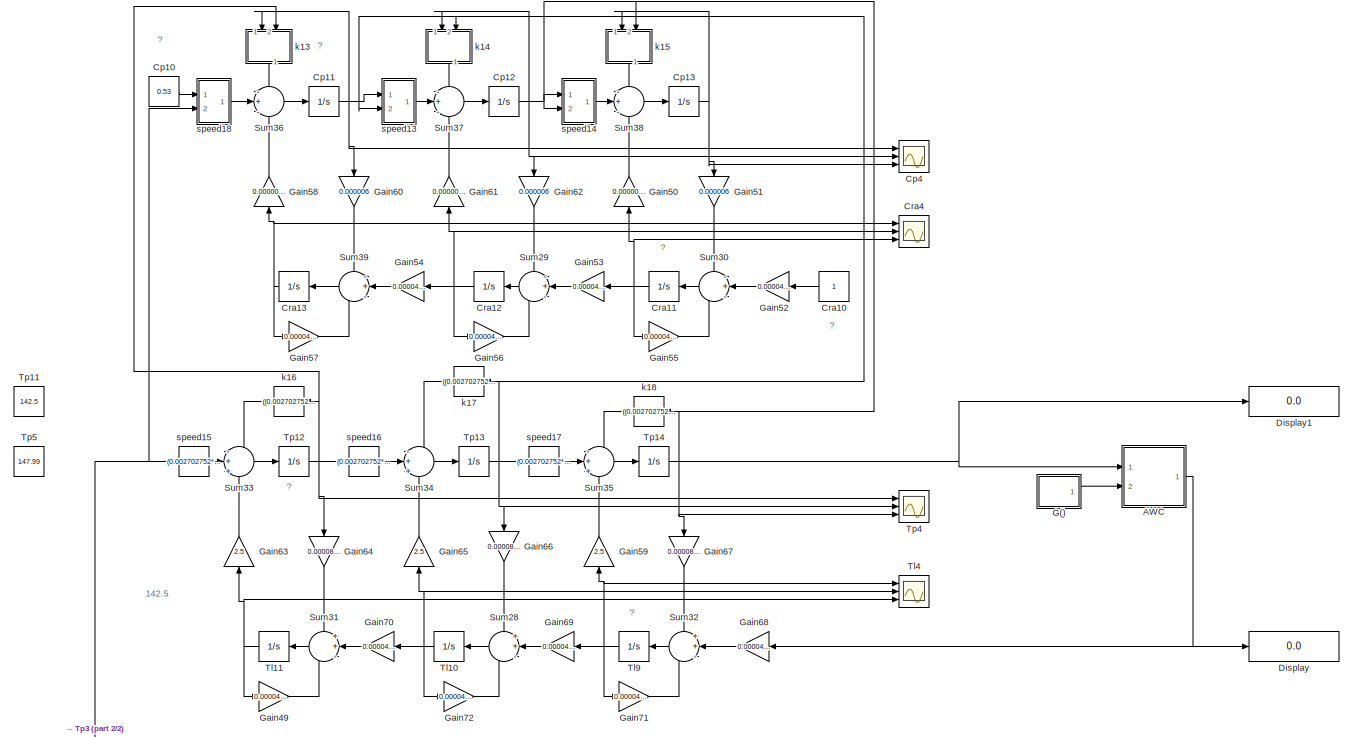
[diagram: root canvas - part 1/2, full width, top band]
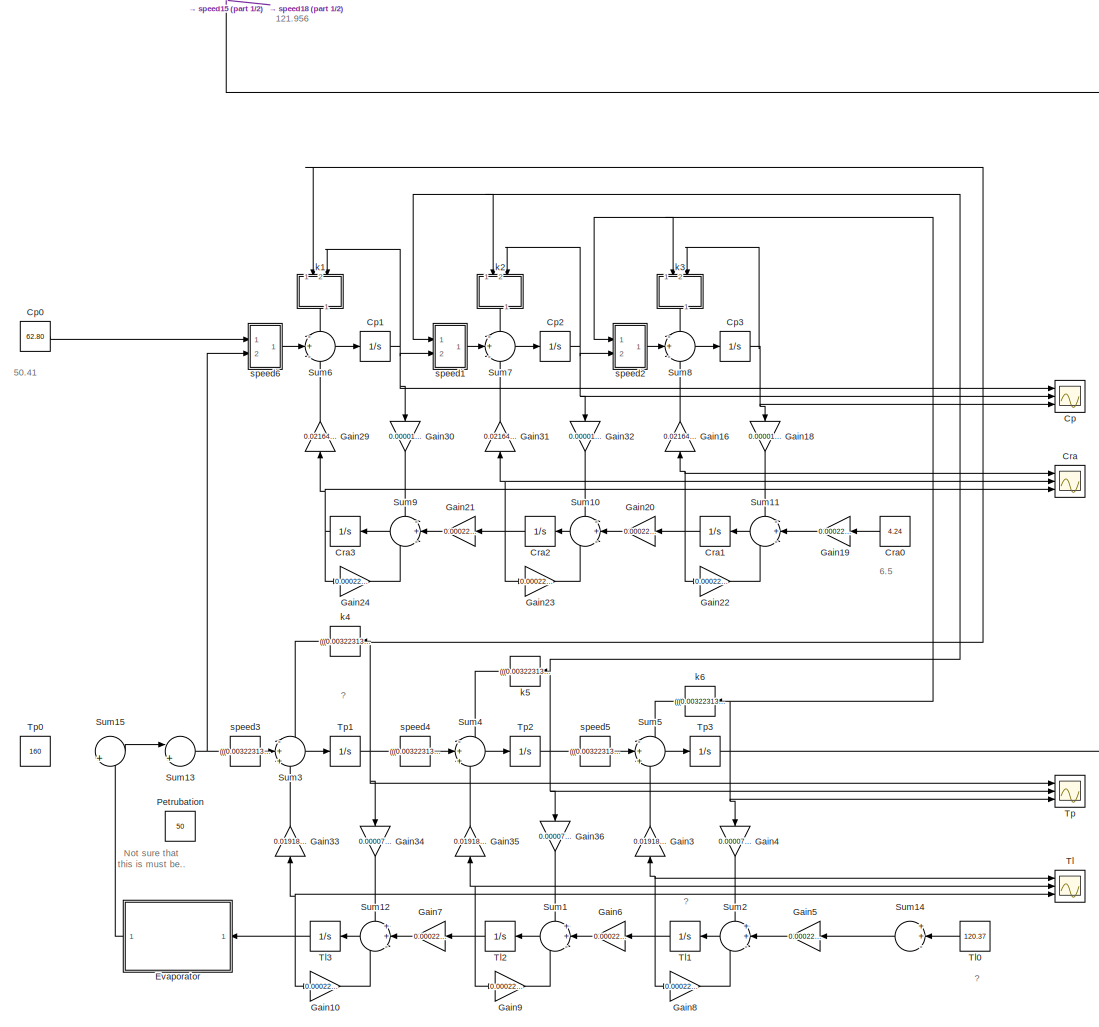
[diagram: root canvas - part 2/2, full width, bottom band]
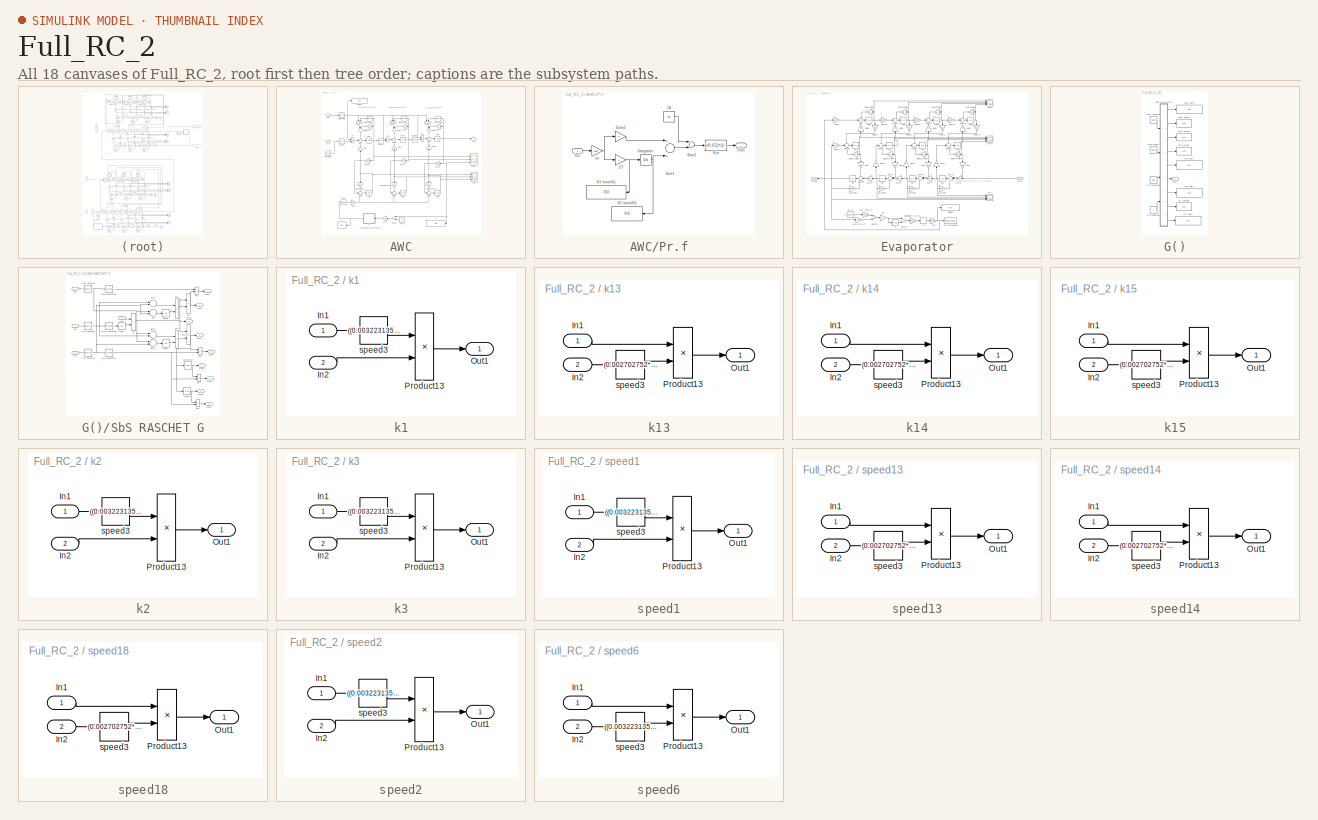
[diagram: thumbnail index - all 18 canvases of the model, root first then tree order]
MODEL Full_RC_2
KIND model
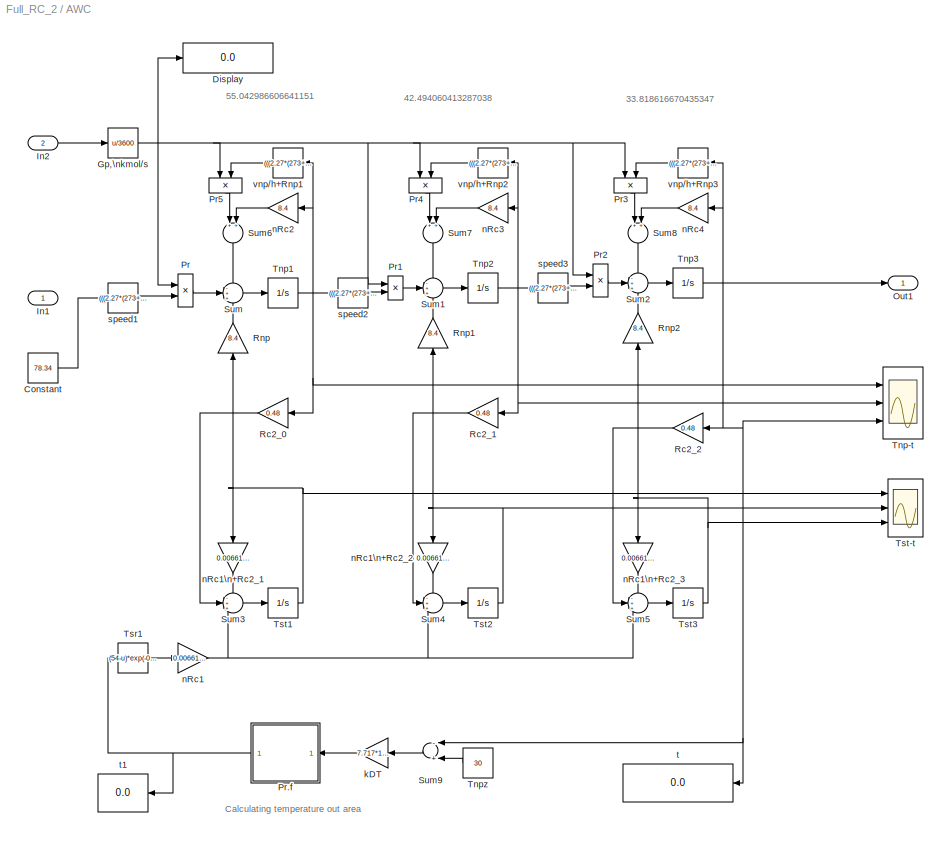
BLOCK [SubSystem] AWC
  Ports = [2, 1]
  RequestExecContextInheritance = off
  SID = 443
BLOCK [Constant] AWC/Constant
  SID = 977
  Value = 78.34
BLOCK [Display] AWC/Display
  Decimation = 1
  Ports = [1]
  SID = 956
BLOCK [Fcn] AWC/Gp,\nkmol//s
  Expr = u/3600
  SID = 456
BLOCK [Inport] AWC/In1
  IconDisplay = Port number
  SID = 444
BLOCK [Inport] AWC/In2
  IconDisplay = Port number
  Port = 2
  SID = 702
BLOCK [Outport] AWC/Out1
  IconDisplay = Port number
  SID = 561
BLOCK [Product] AWC/Pr
  InputSameDT = off
  OutDataTypeStr = Inherit: Inherit via internal rule
  Ports = [2, 1]
  SID = 460
  SaturateOnIntegerOverflow = off
BLOCK [SubSystem] AWC/Pr.f
  Ports = [1, 1]
  RequestExecContextInheritance = off
  SID = 461
BLOCK [Gain] AWC/Pr.f/1//T
  OutDataTypeStr = Inherit: Inherit via internal rule
  ParamDataTypeStr = Inherit: Inherit via internal rule
  SID = 463
  SaturateOnIntegerOverflow = off
BLOCK [Fcn] AWC/Pr.f/Fcn
  Expr = (u/0.152)^(1/2)
  SID = 464
BLOCK [Gain] AWC/Pr.f/Gain1
  OutDataTypeStr = Inherit: Inherit via internal rule
  ParamDataTypeStr = Inherit: Inherit via internal rule
  SID = 465
  SaturateOnIntegerOverflow = off
BLOCK [Display] AWC/Pr.f/Gf, kmol//h1
  Decimation = 1
  Ports = [1]
  SID = 466
BLOCK [Display] AWC/Pr.f/Gf, kmol//h2
  Decimation = 1
  Ports = [1]
  SID = 467
BLOCK [Inport] AWC/Pr.f/In1
  IconDisplay = Port number
  SID = 462
BLOCK [Integrator] AWC/Pr.f/Integrator
  InitialCondition = 403.6
  Ports = [1, 1]
  SID = 468
BLOCK [Outport] AWC/Pr.f/Out1
  IconDisplay = Port number
  SID = 473
BLOCK [Sum] AWC/Pr.f/Sum1
  InputSameDT = off
  OutDataTypeStr = Inherit: Inherit via internal rule
  Ports = [2, 1]
  SID = 469
  SaturateOnIntegerOverflow = off
BLOCK [Sum] AWC/Pr.f/Sum2
  InputSameDT = off
  Inputs = -+
  OutDataTypeStr = Inherit: Inherit via internal rule
  Ports = [2, 1]
  SID = 470
  SaturateOnIntegerOverflow = off
BLOCK [Constant] AWC/Pr.f/U1
  SID = 471
  Value = 380
BLOCK [Gain] AWC/Pr.f/kn
  Gain = 4300
  OutDataTypeStr = Inherit: Inherit via internal rule
  ParamDataTypeStr = Inherit: Inherit via internal rule
  SID = 472
  SaturateOnIntegerOverflow = off
BLOCK [Product] AWC/Pr1
  InputSameDT = off
  OutDataTypeStr = Inherit: Inherit via internal rule
  Ports = [2, 1]
  SID = 474
  SaturateOnIntegerOverflow = off
BLOCK [Product] AWC/Pr2
  InputSameDT = off
  OutDataTypeStr = Inherit: Inherit via internal rule
  Ports = [2, 1]
  SID = 475
  SaturateOnIntegerOverflow = off
BLOCK [Product] AWC/Pr3
  InputSameDT = off
  OutDataTypeStr = Inherit: Inherit via internal rule
  Ports = [2, 1]
  SID = 476
  SaturateOnIntegerOverflow = off
BLOCK [Product] AWC/Pr4
  InputSameDT = off
  OutDataTypeStr = Inherit: Inherit via internal rule
  Ports = [2, 1]
  SID = 477
  SaturateOnIntegerOverflow = off
BLOCK [Product] AWC/Pr5
  InputSameDT = off
  OutDataTypeStr = Inherit: Inherit via internal rule
  Ports = [2, 1]
  SID = 478
  SaturateOnIntegerOverflow = off
BLOCK [Gain] AWC/Rc2_0
  Gain = 0.48
  OutDataTypeStr = Inherit: Inherit via internal rule
  ParamDataTypeStr = Inherit: Inherit via internal rule
  SID = 479
  SaturateOnIntegerOverflow = off
BLOCK [Gain] AWC/Rc2_1
  Gain = 0.48
  OutDataTypeStr = Inherit: Inherit via internal rule
  ParamDataTypeStr = Inherit: Inherit via internal rule
  SID = 480
  SaturateOnIntegerOverflow = off
BLOCK [Gain] AWC/Rc2_2
  Gain = 0.48
  OutDataTypeStr = Inherit: Inherit via internal rule
  ParamDataTypeStr = Inherit: Inherit via internal rule
  SID = 481
  SaturateOnIntegerOverflow = off
BLOCK [Gain] AWC/Rnp
  Gain = 8.4
  OutDataTypeStr = Inherit: Inherit via internal rule
  ParamDataTypeStr = Inherit: Inherit via internal rule
  SID = 482
  SaturateOnIntegerOverflow = off
BLOCK [Gain] AWC/Rnp1
  Gain = 8.4
  OutDataTypeStr = Inherit: Inherit via internal rule
  ParamDataTypeStr = Inherit: Inherit via internal rule
  SID = 483
  SaturateOnIntegerOverflow = off
BLOCK [Gain] AWC/Rnp2
  Gain = 8.4
  OutDataTypeStr = Inherit: Inherit via internal rule
  ParamDataTypeStr = Inherit: Inherit via internal rule
  SID = 484
  SaturateOnIntegerOverflow = off
BLOCK [Sum] AWC/Sum
  IconShape = round
  InputSameDT = off
  Inputs = -++
  OutDataTypeStr = Inherit: Inherit via internal rule
  Ports = [3, 1]
  SID = 523
  SaturateOnIntegerOverflow = off
BLOCK [Sum] AWC/Sum1
  IconShape = round
  InputSameDT = off
  Inputs = -++
  OutDataTypeStr = Inherit: Inherit via internal rule
  Ports = [3, 1]
  SID = 524
  SaturateOnIntegerOverflow = off
BLOCK [Sum] AWC/Sum2
  IconShape = round
  InputSameDT = off
  Inputs = -++
  OutDataTypeStr = Inherit: Inherit via internal rule
  Ports = [3, 1]
  SID = 525
  SaturateOnIntegerOverflow = off
BLOCK [Sum] AWC/Sum3
  IconShape = round
  InputSameDT = off
  Inputs = -++
  OutDataTypeStr = Inherit: Inherit via internal rule
  Ports = [3, 1]
  SID = 526
  SaturateOnIntegerOverflow = off
BLOCK [Sum] AWC/Sum4
  IconShape = round
  InputSameDT = off
  Inputs = -++
  OutDataTypeStr = Inherit: Inherit via internal rule
  Ports = [3, 1]
  SID = 527
  SaturateOnIntegerOverflow = off
BLOCK [Sum] AWC/Sum5
  IconShape = round
  InputSameDT = off
  Inputs = -++
  OutDataTypeStr = Inherit: Inherit via internal rule
  Ports = [3, 1]
  SID = 528
  SaturateOnIntegerOverflow = off
BLOCK [Sum] AWC/Sum6
  InputSameDT = off
  OutDataTypeStr = Inherit: Inherit via internal rule
  Ports = [2, 1]
  SID = 529
  SaturateOnIntegerOverflow = off
BLOCK [Sum] AWC/Sum7
  InputSameDT = off
  OutDataTypeStr = Inherit: Inherit via internal rule
  Ports = [2, 1]
  SID = 530
  SaturateOnIntegerOverflow = off
BLOCK [Sum] AWC/Sum8
  InputSameDT = off
  OutDataTypeStr = Inherit: Inherit via internal rule
  Ports = [2, 1]
  SID = 531
  SaturateOnIntegerOverflow = off
BLOCK [Sum] AWC/Sum9
  InputSameDT = off
  Inputs = -+
  OutDataTypeStr = Inherit: Inherit via internal rule
  Ports = [2, 1]
  SID = 532
  SaturateOnIntegerOverflow = off
BLOCK [Scope] AWC/Tnp-t
  DataFormat = StructureWithTime
  Floating = off
  NumInputPorts = 3
  Ports = [3]
  SID = 533
  SampleTime = 0
  SaveName = ScopeData8
  ShowLegends = off
  YMax = 52.466~37.7725~30.025
  YMin = 52.458~37.745~29.975
BLOCK [Integrator] AWC/Tnp1
  InitialCondition = 55.042986606641151
  Ports = [1, 1]
  SID = 535
BLOCK [Integrator] AWC/Tnp2
  InitialCondition = 42.494060413287038
  Ports = [1, 1]
  SID = 536
BLOCK [Integrator] AWC/Tnp3
  InitialCondition = 33.818616670435347
  Ports = [1, 1]
  SID = 537
BLOCK [Constant] AWC/Tnpz
  SID = 538
  Value = 30
BLOCK [Fcn] AWC/Tsr1
  Expr = (54-u)*exp(-0.06*101.25)+u
  SID = 539
BLOCK [Scope] AWC/Tst-t
  DataFormat = StructureWithTime
  Floating = off
  NumInputPorts = 3
  Ports = [3]
  SID = 540
  SampleTime = 0
  SaveName = ScopeData9
  ShowLegends = off
  YMax = 354.532~633.998~913.686
  YMin = 320.767~573.618~826.668
BLOCK [Integrator] AWC/Tst1
  InitialCondition = 30.749212884999000
  Ports = [1, 1]
  SID = 542
BLOCK [Integrator] AWC/Tst2
  InitialCondition = 26.338794670104530
  Ports = [1, 1]
  SID = 543
BLOCK [Integrator] AWC/Tst3
  InitialCondition = 23.289742144317184
  Ports = [1, 1]
  SID = 544
BLOCK [Gain] AWC/kDT
  Gain = 7.717*10^(-5)
  OutDataTypeStr = Inherit: Inherit via internal rule
  ParamDataTypeStr = Inherit: Inherit via internal rule
  SID = 545
  SaturateOnIntegerOverflow = off
BLOCK [Gain] AWC/nRc1
  Gain = 0.00661*134
  OutDataTypeStr = Inherit: Inherit via internal rule
  ParamDataTypeStr = Inherit: Inherit via internal rule
  SID = 546
  SaturateOnIntegerOverflow = off
BLOCK [Gain] AWC/nRc1\n+Rc2_1
  Gain = 0.00661*134+0.48
  OutDataTypeStr = Inherit: Inherit via internal rule
  ParamDataTypeStr = Inherit: Inherit via internal rule
  SID = 547
  SaturateOnIntegerOverflow = off
BLOCK [Gain] AWC/nRc1\n+Rc2_2
  Gain = 0.00661*134+0.48
  OutDataTypeStr = Inherit: Inherit via internal rule
  ParamDataTypeStr = Inherit: Inherit via internal rule
  SID = 548
  SaturateOnIntegerOverflow = off
BLOCK [Gain] AWC/nRc1\n+Rc2_3
  Gain = 0.00661*134+0.48
  OutDataTypeStr = Inherit: Inherit via internal rule
  ParamDataTypeStr = Inherit: Inherit via internal rule
  SID = 549
  SaturateOnIntegerOverflow = off
BLOCK [Gain] AWC/nRc2
  Gain = 8.4
  OutDataTypeStr = Inherit: Inherit via internal rule
  ParamDataTypeStr = Inherit: Inherit via internal rule
  SID = 550
  SaturateOnIntegerOverflow = off
BLOCK [Gain] AWC/nRc3
  Gain = 8.4
  OutDataTypeStr = Inherit: Inherit via internal rule
  ParamDataTypeStr = Inherit: Inherit via internal rule
  SID = 551
  SaturateOnIntegerOverflow = off
BLOCK [Gain] AWC/nRc4
  Gain = 8.4
  OutDataTypeStr = Inherit: Inherit via internal rule
  ParamDataTypeStr = Inherit: Inherit via internal rule
  SID = 552
  SaturateOnIntegerOverflow = off
BLOCK [Fcn] AWC/speed1
  Expr = (((2.27*(273+u))/1.4184)/1.333)*u
  SID = 553
BLOCK [Fcn] AWC/speed2
  Expr = (((2.27*(273+u))/1.4184)/1.333)*u
  SID = 554
BLOCK [Fcn] AWC/speed3
  Expr = (((2.27*(273+u))/1.4184)/1.333)*u
  SID = 555
BLOCK [Display] AWC/t
  Decimation = 1
  Ports = [1]
  SID = 556
BLOCK [Display] AWC/t1
  Decimation = 1
  Ports = [1]
  SID = 557
BLOCK [Fcn] AWC/vnp//h+Rnp1
  Expr = (((2.27*(273+u))/1.4184)/1.333)*u
  SID = 558
BLOCK [Fcn] AWC/vnp//h+Rnp2
  Expr = (((2.27*(273+u))/1.4184)/1.333)*u
  SID = 559
BLOCK [Fcn] AWC/vnp//h+Rnp3
  Expr = (((2.27*(273+u))/1.4184)/1.333)*u
  SID = 560
BLOCK [Scope] Cp
  DataFormat = Structure
  Floating = off
  LimitDataPoints = off
  NumInputPorts = 3
  Ports = [3]
  SID = 1
  SampleTime = 0
  SaveName = Cp
  SaveToWorkspace = on
  ShowLegends = off
  TimeRange = 12
  YMax = 62.5~82~95.37000000000001
  YMin = 61.5~77~95.34999999999999
BLOCK [Constant] Cp0
  SID = 2
  Value = 62.80
BLOCK [Integrator] Cp1
  InitialCondition = 62.80
  Ports = [1, 1]
  SID = 3
BLOCK [Constant] Cp10
  SID = 982
  Value = 0.53
BLOCK [Integrator] Cp11
  InitialCondition = 0.665
  Ports = [1, 1]
  SID = 983
BLOCK [Integrator] Cp12
  InitialCondition = 0.803
  Ports = [1, 1]
  SID = 984
BLOCK [Integrator] Cp13
  InitialCondition = 0.986
  Ports = [1, 1]
  SID = 985
BLOCK [Integrator] Cp2
  InitialCondition = 77.79
  Ports = [1, 1]
  SID = 4
BLOCK [Integrator] Cp3
  InitialCondition = 96.56
  Ports = [1, 1]
  SID = 5
BLOCK [Scope] Cp4
  DataFormat = Structure
  Floating = off
  LimitDataPoints = off
  NumInputPorts = 3
  Ports = [3]
  SID = 952
  SampleTime = 0
  SaveName = Cp1
  SaveToWorkspace = on
  ShowLegends = off
  TimeRange = 12
  YMax = 62.5~82~95.37000000000001
  YMin = 61.5~77~95.34999999999999
BLOCK [Scope] Cra
  DataFormat = StructureWithTime
  Floating = off
  LimitDataPoints = off
  NumInputPorts = 3
  Ports = [3]
  SID = 6
  SampleTime = 0
  SaveName = Cra
  SaveToWorkspace = on
  ShowLegends = off
  YMax = 4.28~2.5~1
  YMin = 4.17~2.4~0.84
BLOCK [Constant] Cra0
  SID = 7
  Value = 4.24
BLOCK [Integrator] Cra1
  InitialCondition = 4.24
  Ports = [1, 1]
  SID = 8
BLOCK [Constant] Cra10
  SID = 989
BLOCK [Integrator] Cra11
  InitialCondition = 0.827
  Ports = [1, 1]
  SID = 990
BLOCK [Integrator] Cra12
  InitialCondition = 0.6862
  Ports = [1, 1]
  SID = 991
BLOCK [Integrator] Cra13
  InitialCondition = 0.5696
  Ports = [1, 1]
  SID = 992
BLOCK [Integrator] Cra2
  InitialCondition = 2.42
  Ports = [1, 1]
  SID = 9
BLOCK [Integrator] Cra3
  InitialCondition = 0.95
  Ports = [1, 1]
  SID = 10
BLOCK [Scope] Cra4
  DataFormat = StructureWithTime
  Floating = off
  LimitDataPoints = off
  NumInputPorts = 3
  Ports = [3]
  SID = 953
  SampleTime = 0
  SaveName = Cra1
  SaveToWorkspace = on
  ShowLegends = off
  YMax = 4.28~2.5~1
  YMin = 4.17~2.4~0.84
BLOCK [Display] Display
  Decimation = 1
  Ports = [1]
  SID = 993
BLOCK [Display] Display1
  Decimation = 1
  Ports = [1]
  SID = 994
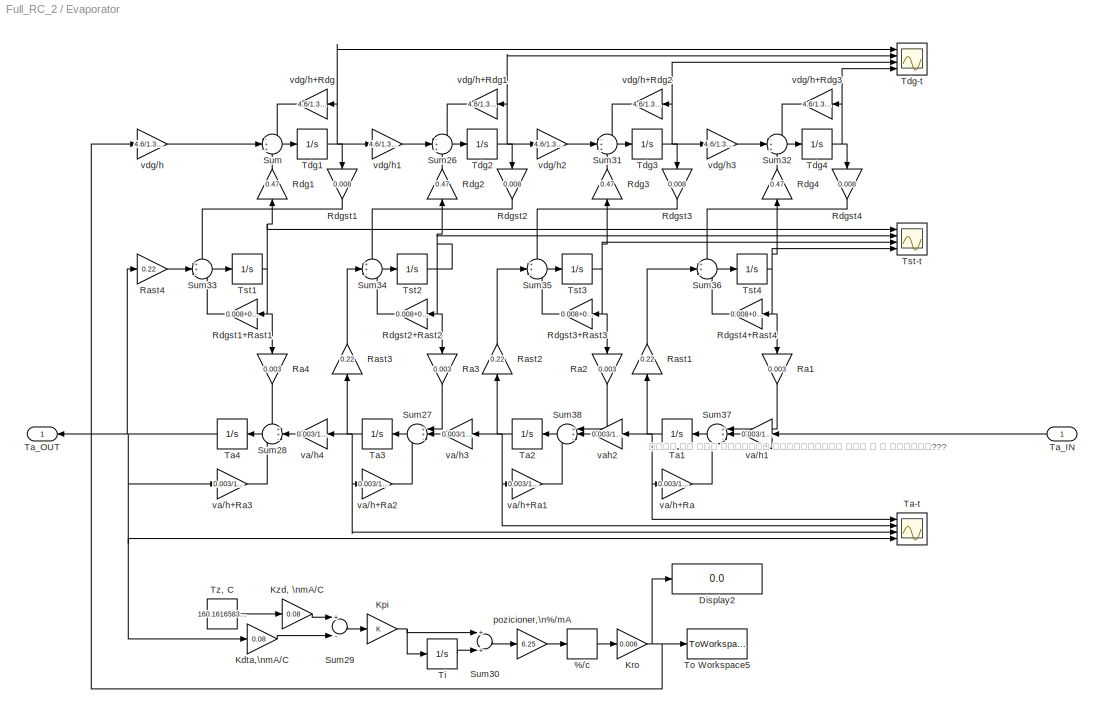
BLOCK [SubSystem] Evaporator
  Ports = [1, 1]
  RequestExecContextInheritance = off
  SID = 440
BLOCK [RateLimiter] Evaporator/%//c
  FallingSlewLimit = -5
  RisingSlewLimit = 5
  SID = 337
  SampleTimeMode = inherited
BLOCK [Display] Evaporator/Display2
  Decimation = 1
  Ports = [1]
  SID = 338
BLOCK [Gain] Evaporator/Kdta,\nmA//C
  Gain = 0.08
  OutDataTypeStr = Inherit: Inherit via internal rule
  ParamDataTypeStr = Inherit: Inherit via internal rule
  SID = 339
  SaturateOnIntegerOverflow = off
BLOCK [Gain] Evaporator/Kpi
  OutDataTypeStr = Inherit: Inherit via internal rule
  ParamDataTypeStr = Inherit: Inherit via internal rule
  SID = 340
  SaturateOnIntegerOverflow = off
BLOCK [Gain] Evaporator/Kro
  Gain = 0.006
  OutDataTypeStr = Inherit: Inherit via internal rule
  ParamDataTypeStr = Inherit: Inherit via internal rule
  SID = 341
  SaturateOnIntegerOverflow = off
BLOCK [Gain] Evaporator/Kzd, \nmA//C
  Gain = 0.08
  OutDataTypeStr = Inherit: Inherit via internal rule
  ParamDataTypeStr = Inherit: Inherit via internal rule
  SID = 342
  SaturateOnIntegerOverflow = off
BLOCK [Gain] Evaporator/Ra1
  Gain = 0.003
  OutDataTypeStr = Inherit: Inherit via internal rule
  ParamDataTypeStr = Inherit: Inherit via internal rule
  SID = 343
  SaturateOnIntegerOverflow = off
BLOCK [Gain] Evaporator/Ra2
  Gain = 0.003
  OutDataTypeStr = Inherit: Inherit via internal rule
  ParamDataTypeStr = Inherit: Inherit via internal rule
  SID = 344
  SaturateOnIntegerOverflow = off
BLOCK [Gain] Evaporator/Ra3
  Gain = 0.003
  OutDataTypeStr = Inherit: Inherit via internal rule
  ParamDataTypeStr = Inherit: Inherit via internal rule
  SID = 345
  SaturateOnIntegerOverflow = off
BLOCK [Gain] Evaporator/Ra4
  Gain = 0.003
  OutDataTypeStr = Inherit: Inherit via internal rule
  ParamDataTypeStr = Inherit: Inherit via internal rule
  SID = 346
  SaturateOnIntegerOverflow = off
BLOCK [Gain] Evaporator/Rast1
  Gain = 0.22
  OutDataTypeStr = Inherit: Inherit via internal rule
  ParamDataTypeStr = Inherit: Inherit via internal rule
  SID = 347
  SaturateOnIntegerOverflow = off
BLOCK [Gain] Evaporator/Rast2
  Gain = 0.22
  OutDataTypeStr = Inherit: Inherit via internal rule
  ParamDataTypeStr = Inherit: Inherit via internal rule
  SID = 348
  SaturateOnIntegerOverflow = off
BLOCK [Gain] Evaporator/Rast3
  Gain = 0.22
  OutDataTypeStr = Inherit: Inherit via internal rule
  ParamDataTypeStr = Inherit: Inherit via internal rule
  SID = 349
  SaturateOnIntegerOverflow = off
BLOCK [Gain] Evaporator/Rast4
  Gain = 0.22
  OutDataTypeStr = Inherit: Inherit via internal rule
  ParamDataTypeStr = Inherit: Inherit via internal rule
  SID = 350
  SaturateOnIntegerOverflow = off
BLOCK [Gain] Evaporator/Rdg1
  Gain = 0.47
  OutDataTypeStr = Inherit: Inherit via internal rule
  ParamDataTypeStr = Inherit: Inherit via internal rule
  SID = 351
  SaturateOnIntegerOverflow = off
BLOCK [Gain] Evaporator/Rdg2
  Gain = 0.47
  OutDataTypeStr = Inherit: Inherit via internal rule
  ParamDataTypeStr = Inherit: Inherit via internal rule
  SID = 352
  SaturateOnIntegerOverflow = off
BLOCK [Gain] Evaporator/Rdg3
  Gain = 0.47
  OutDataTypeStr = Inherit: Inherit via internal rule
  ParamDataTypeStr = Inherit: Inherit via internal rule
  SID = 353
  SaturateOnIntegerOverflow = off
BLOCK [Gain] Evaporator/Rdg4
  Gain = 0.47
  OutDataTypeStr = Inherit: Inherit via internal rule
  ParamDataTypeStr = Inherit: Inherit via internal rule
  SID = 354
  SaturateOnIntegerOverflow = off
BLOCK [Gain] Evaporator/Rdgst1
  Gain = 0.008
  OutDataTypeStr = Inherit: Inherit via internal rule
  ParamDataTypeStr = Inherit: Inherit via internal rule
  SID = 355
  SaturateOnIntegerOverflow = off
BLOCK [Gain] Evaporator/Rdgst1+Rast1
  Gain = 0.008+0.22
  OutDataTypeStr = Inherit: Inherit via internal rule
  ParamDataTypeStr = Inherit: Inherit via internal rule
  SID = 356
  SaturateOnIntegerOverflow = off
BLOCK [Gain] Evaporator/Rdgst2
  Gain = 0.008
  OutDataTypeStr = Inherit: Inherit via internal rule
  ParamDataTypeStr = Inherit: Inherit via internal rule
  SID = 357
  SaturateOnIntegerOverflow = off
BLOCK [Gain] Evaporator/Rdgst2+Rast2
  Gain = 0.008+0.22
  OutDataTypeStr = Inherit: Inherit via internal rule
  ParamDataTypeStr = Inherit: Inherit via internal rule
  SID = 358
  SaturateOnIntegerOverflow = off
BLOCK [Gain] Evaporator/Rdgst3
  Gain = 0.008
  OutDataTypeStr = Inherit: Inherit via internal rule
  ParamDataTypeStr = Inherit: Inherit via internal rule
  SID = 359
  SaturateOnIntegerOverflow = off
BLOCK [Gain] Evaporator/Rdgst3+Rast3
  Gain = 0.008+0.22
  OutDataTypeStr = Inherit: Inherit via internal rule
  ParamDataTypeStr = Inherit: Inherit via internal rule
  SID = 360
  SaturateOnIntegerOverflow = off
BLOCK [Gain] Evaporator/Rdgst4
  Gain = 0.008
  OutDataTypeStr = Inherit: Inherit via internal rule
  ParamDataTypeStr = Inherit: Inherit via internal rule
  SID = 361
  SaturateOnIntegerOverflow = off
BLOCK [Gain] Evaporator/Rdgst4+Rast4
  Gain = 0.008+0.22
  OutDataTypeStr = Inherit: Inherit via internal rule
  ParamDataTypeStr = Inherit: Inherit via internal rule
  SID = 362
  SaturateOnIntegerOverflow = off
BLOCK [Sum] Evaporator/Sum
  IconShape = round
  InputSameDT = off
  Inputs = -++
  OutDataTypeStr = Inherit: Inherit via internal rule
  Ports = [3, 1]
  SID = 364
  SaturateOnIntegerOverflow = off
BLOCK [Sum] Evaporator/Sum26
  IconShape = round
  InputSameDT = off
  Inputs = -++
  OutDataTypeStr = Inherit: Inherit via internal rule
  Ports = [3, 1]
  SID = 365
  SaturateOnIntegerOverflow = off
BLOCK [Sum] Evaporator/Sum27
  IconShape = round
  InputSameDT = off
  Inputs = ++-
  OutDataTypeStr = Inherit: Inherit via internal rule
  Ports = [3, 1]
  SID = 366
  SaturateOnIntegerOverflow = off
BLOCK [Sum] Evaporator/Sum28
  IconShape = round
  InputSameDT = off
  Inputs = ++-
  OutDataTypeStr = Inherit: Inherit via internal rule
  Ports = [3, 1]
  SID = 367
  SaturateOnIntegerOverflow = off
BLOCK [Sum] Evaporator/Sum29
  InputSameDT = off
  Inputs = +-
  OutDataTypeStr = Inherit: Inherit via internal rule
  Ports = [2, 1]
  SID = 368
  SaturateOnIntegerOverflow = off
BLOCK [Sum] Evaporator/Sum30
  InputSameDT = off
  OutDataTypeStr = Inherit: Inherit via internal rule
  Ports = [2, 1]
  SID = 369
  SaturateOnIntegerOverflow = off
BLOCK [Sum] Evaporator/Sum31
  IconShape = round
  InputSameDT = off
  Inputs = -++
  OutDataTypeStr = Inherit: Inherit via internal rule
  Ports = [3, 1]
  SID = 370
  SaturateOnIntegerOverflow = off
BLOCK [Sum] Evaporator/Sum32
  IconShape = round
  InputSameDT = off
  Inputs = -++
  OutDataTypeStr = Inherit: Inherit via internal rule
  Ports = [3, 1]
  SID = 371
  SaturateOnIntegerOverflow = off
BLOCK [Sum] Evaporator/Sum33
  IconShape = round
  InputSameDT = off
  Inputs = ++-
  OutDataTypeStr = Inherit: Inherit via internal rule
  Ports = [3, 1]
  SID = 372
  SaturateOnIntegerOverflow = off
BLOCK [Sum] Evaporator/Sum34
  IconShape = round
  InputSameDT = off
  Inputs = ++-
  OutDataTypeStr = Inherit: Inherit via internal rule
  Ports = [3, 1]
  SID = 373
  SaturateOnIntegerOverflow = off
BLOCK [Sum] Evaporator/Sum35
  IconShape = round
  InputSameDT = off
  Inputs = ++-
  OutDataTypeStr = Inherit: Inherit via internal rule
  Ports = [3, 1]
  SID = 374
  SaturateOnIntegerOverflow = off
BLOCK [Sum] Evaporator/Sum36
  IconShape = round
  InputSameDT = off
  Inputs = ++-
  OutDataTypeStr = Inherit: Inherit via internal rule
  Ports = [3, 1]
  SID = 375
  SaturateOnIntegerOverflow = off
BLOCK [Sum] Evaporator/Sum37
  IconShape = round
  InputSameDT = off
  Inputs = ++-
  OutDataTypeStr = Inherit: Inherit via internal rule
  Ports = [3, 1]
  SID = 376
  SaturateOnIntegerOverflow = off
BLOCK [Sum] Evaporator/Sum38
  IconShape = round
  InputSameDT = off
  Inputs = ++-
  OutDataTypeStr = Inherit: Inherit via internal rule
  Ports = [3, 1]
  SID = 377
  SaturateOnIntegerOverflow = off
BLOCK [Scope] Evaporator/Ta-t
  DataFormat = StructureWithTime
  Floating = off
  LimitDataPoints = off
  NumInputPorts = 4
  Ports = [4]
  SID = 378
  SampleTime = 0
  SaveName = ScopeData11
  ShowLegends = off
  YMax = 5~5~165~165
  YMin = -5~-5~100~100
BLOCK [Integrator] Evaporator/Ta1
  InitialCondition = 136.285
  Ports = [1, 1]
  SID = 380
BLOCK [Integrator] Evaporator/Ta2
  InitialCondition = 144.19
  Ports = [1, 1]
  SID = 381
BLOCK [Integrator] Evaporator/Ta3
  InitialCondition = 152.09
  Ports = [1, 1]
  SID = 382
BLOCK [Integrator] Evaporator/Ta4
  InitialCondition = 160
  Ports = [1, 1]
  SID = 383
BLOCK [Inport] Evaporator/Ta_IN
  IconDisplay = Port number
  SID = 701
BLOCK [Outport] Evaporator/Ta_OUT
  IconDisplay = Port number
  SID = 700
BLOCK [Scope] Evaporator/Tdg-t
  DataFormat = StructureWithTime
  Floating = off
  LimitDataPoints = off
  NumInputPorts = 4
  Ports = [4]
  SID = 384
  SampleTime = 0
  SaveName = ScopeData12
  ShowLegends = off
  YMax = 5~5~5~5
  YMin = -5~-5~-5~-5
BLOCK [Integrator] Evaporator/Tdg1
  InitialCondition = 283.3065209436467
  Ports = [1, 1]
  SID = 385
BLOCK [Integrator] Evaporator/Tdg2
  InitialCondition = 267.8966165589237
  Ports = [1, 1]
  SID = 386
BLOCK [Integrator] Evaporator/Tdg3
  InitialCondition = 253.6715917846216
  Ports = [1, 1]
  SID = 387
BLOCK [Integrator] Evaporator/Tdg4
  InitialCondition = 240.5403403000344
  Ports = [1, 1]
  SID = 388
BLOCK [Integrator] Evaporator/Ti
  InitialCondition = 8000
  LowerSaturationLimit = 6012
  Ports = [1, 1]
  SID = 389
  UpperSaturationLimit = 8012
BLOCK [ToWorkspace] Evaporator/To Workspace5
  MaxDataPoints = inf
  Ports = [1]
  SID = 390
  SampleTime = -1
  VariableName = Tdg0
BLOCK [Scope] Evaporator/Tst-t
  DataFormat = StructureWithTime
  Floating = off
  LimitDataPoints = off
  NumInputPorts = 4
  Ports = [4]
  SID = 403
  SampleTime = 0
  SaveName = ScopeData13
  ShowLegends = off
  YMax = 5~5~5~5
  YMin = -5~-5~-5~-5
BLOCK [Integrator] Evaporator/Tst1
  InitialCondition = 164.4825307550351
  Ports = [1, 1]
  SID = 404
BLOCK [Integrator] Evaporator/Tst2
  InitialCondition = 158.2090959868120
  Ports = [1, 1]
  SID = 405
BLOCK [Integrator] Evaporator/Tst3
  InitialCondition = 152.4180305285302
  Ports = [1, 1]
  SID = 406
BLOCK [Integrator] Evaporator/Tst4
  InitialCondition = 147.0722446263660
  Ports = [1, 1]
  SID = 407
BLOCK [Constant] Evaporator/Tz, C
  SID = 408
  Value = 160.1616583845354
BLOCK [Gain] Evaporator/pozicioner,\n%//mA
  Gain = 6.25
  OutDataTypeStr = Inherit: Inherit via internal rule
  ParamDataTypeStr = Inherit: Inherit via internal rule
  SID = 409
  SaturateOnIntegerOverflow = off
BLOCK [Gain] Evaporator/va//h+Ra
  Gain = 0.003/1.375+0.003
  OutDataTypeStr = Inherit: Inherit via internal rule
  ParamDataTypeStr = Inherit: Inherit via internal rule
  SID = 410
  SaturateOnIntegerOverflow = off
BLOCK [Gain] Evaporator/va//h+Ra1
  Gain = 0.003/1.375+0.003
  OutDataTypeStr = Inherit: Inherit via internal rule
  ParamDataTypeStr = Inherit: Inherit via internal rule
  SID = 411
  SaturateOnIntegerOverflow = off
BLOCK [Gain] Evaporator/va//h+Ra2
  Gain = 0.003/1.375+0.003
  OutDataTypeStr = Inherit: Inherit via internal rule
  ParamDataTypeStr = Inherit: Inherit via internal rule
  SID = 412
  SaturateOnIntegerOverflow = off
BLOCK [Gain] Evaporator/va//h+Ra3
  Gain = 0.003/1.375+0.003
  OutDataTypeStr = Inherit: Inherit via internal rule
  ParamDataTypeStr = Inherit: Inherit via internal rule
  SID = 413
  SaturateOnIntegerOverflow = off
BLOCK [Gain] Evaporator/va//h1
  Gain = 0.003/1.375
  OutDataTypeStr = Inherit: Inherit via internal rule
  ParamDataTypeStr = Inherit: Inherit via internal rule
  SID = 414
  SaturateOnIntegerOverflow = off
BLOCK [Gain] Evaporator/va//h3
  Gain = 0.003/1.375
  OutDataTypeStr = Inherit: Inherit via internal rule
  ParamDataTypeStr = Inherit: Inherit via internal rule
  SID = 415
  SaturateOnIntegerOverflow = off
BLOCK [Gain] Evaporator/va//h4
  Gain = 0.003/1.375
  OutDataTypeStr = Inherit: Inherit via internal rule
  ParamDataTypeStr = Inherit: Inherit via internal rule
  SID = 416
  SaturateOnIntegerOverflow = off
BLOCK [Gain] Evaporator/vah2
  Gain = 0.003/1.375
  OutDataTypeStr = Inherit: Inherit via internal rule
  ParamDataTypeStr = Inherit: Inherit via internal rule
  SID = 417
  SaturateOnIntegerOverflow = off
BLOCK [Gain] Evaporator/vdg//h
  Gain = 4.6/1.375
  OutDataTypeStr = Inherit: Inherit via internal rule
  ParamDataTypeStr = Inherit: Inherit via internal rule
  SID = 418
  SaturateOnIntegerOverflow = off
BLOCK [Gain] Evaporator/vdg//h+Rdg
  Gain = 4.6/1.375+0.47
  OutDataTypeStr = Inherit: Inherit via internal rule
  ParamDataTypeStr = Inherit: Inherit via internal rule
  SID = 419
  SaturateOnIntegerOverflow = off
BLOCK [Gain] Evaporator/vdg//h+Rdg1
  Gain = 4.6/1.375+0.47
  OutDataTypeStr = Inherit: Inherit via internal rule
  ParamDataTypeStr = Inherit: Inherit via internal rule
  SID = 420
  SaturateOnIntegerOverflow = off
BLOCK [Gain] Evaporator/vdg//h+Rdg2
  Gain = 4.6/1.375+0.47
  OutDataTypeStr = Inherit: Inherit via internal rule
  ParamDataTypeStr = Inherit: Inherit via internal rule
  SID = 421
  SaturateOnIntegerOverflow = off
BLOCK [Gain] Evaporator/vdg//h+Rdg3
  Gain = 4.6/1.375+0.47
  OutDataTypeStr = Inherit: Inherit via internal rule
  ParamDataTypeStr = Inherit: Inherit via internal rule
  SID = 422
  SaturateOnIntegerOverflow = off
BLOCK [Gain] Evaporator/vdg//h1
  Gain = 4.6/1.375
  OutDataTypeStr = Inherit: Inherit via internal rule
  ParamDataTypeStr = Inherit: Inherit via internal rule
  SID = 423
  SaturateOnIntegerOverflow = off
BLOCK [Gain] Evaporator/vdg//h2
  Gain = 4.6/1.375
  OutDataTypeStr = Inherit: Inherit via internal rule
  ParamDataTypeStr = Inherit: Inherit via internal rule
  SID = 424
  SaturateOnIntegerOverflow = off
BLOCK [Gain] Evaporator/vdg//h3
  Gain = 4.6/1.375
  OutDataTypeStr = Inherit: Inherit via internal rule
  ParamDataTypeStr = Inherit: Inherit via internal rule
  SID = 425
  SaturateOnIntegerOverflow = off
BLOCK [SubSystem] G()
  Ports = [0, 1]
  RequestExecContextInheritance = off
  SID = 703
BLOCK [Constant] G()/Cd,\nves.dol
  SID = 445
BLOCK [Constant] G()/Cna, \nves.dol
  SID = 448
  Value = 0.065
BLOCK [Constant] G()/Cra,\nves.dol
  SID = 449
  Value = 0.01
BLOCK [Display] G()/Gd, kg//h
  Decimation = 1
  Format = long
  Ports = [1]
  SID = 450
BLOCK [Display] G()/Gd, kmol//h
  Decimation = 1
  Ports = [1]
  SID = 451
BLOCK [Display] G()/Gf, kg//h
  Decimation = 1
  Format = long
  Ports = [1]
  SID = 452
BLOCK [Display] G()/Gf, kmol//h
  Decimation = 1
  Ports = [1]
  SID = 453
BLOCK [Display] G()/Gna, kg//h
  Decimation = 1
  Format = long
  Ports = [1]
  SID = 454
BLOCK [Display] G()/Gna, kmol//h
  Decimation = 1
  Ports = [1]
  SID = 455
BLOCK [Display] G()/Gp, kg//h
  Decimation = 1
  Format = long
  Ports = [1]
  SID = 457
BLOCK [Display] G()/Gra, kmol//h
  Decimation = 1
  Ports = [1]
  SID = 459
BLOCK [Constant] G()/Gra,\nkg//h
  SID = 458
  Value = 9600
BLOCK [Outport] G()/Out1
  IconDisplay = Port number
  SID = 704
BLOCK [SubSystem] G()/SbS RASCHET G
  Ports = [4, 9]
  RequestExecContextInheritance = off
  SID = 485
BLOCK [Fcn] G()/SbS RASCHET G/Cd,\nmol.dol
  Expr = (u/18.02)/((u/18.02)+((1-u)/106.12))
  SID = 490
BLOCK [Fcn] G()/SbS RASCHET G/Cna,\nmol.dol
  Expr = (u/18.02)/((u/18.02)+((1-u)/106.12))
  SID = 491
BLOCK [Fcn] G()/SbS RASCHET G/Cra,\nmol.dol
  Expr = (u/18.02)/((u/18.02)+((1-u)/106.12))
  SID = 492
BLOCK [Fcn] G()/SbS RASCHET G/Fcn1
  Expr = 1/u
  SID = 493
BLOCK [Fcn] G()/SbS RASCHET G/Fcn10
  Expr = 1/u
  SID = 494
BLOCK [Fcn] G()/SbS RASCHET G/Fcn6
  Expr = 1/u
  SID = 495
BLOCK [Fcn] G()/SbS RASCHET G/Gd*(R+1)
  Expr = u*(0.5+1)
  SID = 496
BLOCK [Fcn] G()/SbS RASCHET G/Gd*R
  Expr = u*0.5
  SID = 497
BLOCK [Inport] G()/SbS RASCHET G/In1
  IconDisplay = Port number
  SID = 486
BLOCK [Inport] G()/SbS RASCHET G/In2
  IconDisplay = Port number
  Port = 2
  SID = 487
BLOCK [Inport] G()/SbS RASCHET G/In3
  IconDisplay = Port number
  Port = 3
  SID = 488
BLOCK [Inport] G()/SbS RASCHET G/In4
  IconDisplay = Port number
  Port = 4
  SID = 489
BLOCK [Fcn] G()/SbS RASCHET G/Md,\nkg//kmol
  Expr = 18.02*u+106.12*(1-u)
  SID = 498
BLOCK [Fcn] G()/SbS RASCHET G/Mna,\nkg//kmol1
  Expr = 18.02*u+106.12*(1-u)
  SID = 499
BLOCK [Fcn] G()/SbS RASCHET G/Mra,\n kg//kmol
  Expr = 18.02*u+106.12*(1-u)
  SID = 500
BLOCK [Outport] G()/SbS RASCHET G/Out1
  IconDisplay = Port number
  SID = 514
BLOCK [Outport] G()/SbS RASCHET G/Out2
  IconDisplay = Port number
  Port = 2
  SID = 515
BLOCK [Outport] G()/SbS RASCHET G/Out3
  IconDisplay = Port number
  Port = 3
  SID = 516
BLOCK [Outport] G()/SbS RASCHET G/Out4
  IconDisplay = Port number
  Port = 4
  SID = 517
BLOCK [Outport] G()/SbS RASCHET G/Out5
  IconDisplay = Port number
  Port = 5
  SID = 518
BLOCK [Outport] G()/SbS RASCHET G/Out6
  IconDisplay = Port number
  Port = 6
  SID = 519
BLOCK [Outport] G()/SbS RASCHET G/Out7
  IconDisplay = Port number
  Port = 7
  SID = 520
BLOCK [Outport] G()/SbS RASCHET G/Out8
  IconDisplay = Port number
  Port = 8
  SID = 521
BLOCK [Outport] G()/SbS RASCHET G/Out9
  IconDisplay = Port number
  Port = 9
  SID = 522
BLOCK [Product] G()/SbS RASCHET G/Pr
  InputSameDT = off
  OutDataTypeStr = Inherit: Inherit via internal rule
  Ports = [2, 1]
  SID = 501
  SaturateOnIntegerOverflow = off
BLOCK [Product] G()/SbS RASCHET G/Pr1
  InputSameDT = off
  OutDataTypeStr = Inherit: Inherit via internal rule
  Ports = [2, 1]
  SID = 502
  SaturateOnIntegerOverflow = off
BLOCK [Product] G()/SbS RASCHET G/Pr2
  InputSameDT = off
  OutDataTypeStr = Inherit: Inherit via internal rule
  Ports = [2, 1]
  SID = 503
  SaturateOnIntegerOverflow = off
BLOCK [Product] G()/SbS RASCHET G/Pr3
  InputSameDT = off
  OutDataTypeStr = Inherit: Inherit via internal rule
  Ports = [2, 1]
  SID = 504
  SaturateOnIntegerOverflow = off
BLOCK [Product] G()/SbS RASCHET G/Pr4
  InputSameDT = off
  OutDataTypeStr = Inherit: Inherit via internal rule
  Ports = [2, 1]
  SID = 505
  SaturateOnIntegerOverflow = off
BLOCK [Product] G()/SbS RASCHET G/Pr5
  InputSameDT = off
  OutDataTypeStr = Inherit: Inherit via internal rule
  Ports = [2, 1]
  SID = 506
  SaturateOnIntegerOverflow = off
BLOCK [Product] G()/SbS RASCHET G/Pr6
  InputSameDT = off
  OutDataTypeStr = Inherit: Inherit via internal rule
  Ports = [2, 1]
  SID = 507
  SaturateOnIntegerOverflow = off
BLOCK [Product] G()/SbS RASCHET G/Pr7
  InputSameDT = off
  OutDataTypeStr = Inherit: Inherit via internal rule
  Ports = [2, 1]
  SID = 508
  SaturateOnIntegerOverflow = off
BLOCK [Product] G()/SbS RASCHET G/Pr8
  InputSameDT = off
  OutDataTypeStr = Inherit: Inherit via internal rule
  Ports = [2, 1]
  SID = 509
  SaturateOnIntegerOverflow = off
BLOCK [Sum] G()/SbS RASCHET G/Sbtr2
  InputSameDT = off
  Inputs = +-
  OutDataTypeStr = Inherit: Inherit via internal rule
  Ports = [2, 1]
  SID = 510
  SaturateOnIntegerOverflow = off
BLOCK [Sum] G()/SbS RASCHET G/Sbtr3
  InputSameDT = off
  Inputs = -+
  OutDataTypeStr = Inherit: Inherit via internal rule
  Ports = [2, 1]
  SID = 511
  SaturateOnIntegerOverflow = off
BLOCK [Sum] G()/SbS RASCHET G/Str
  InputSameDT = off
  Inputs = -+
  OutDataTypeStr = Inherit: Inherit via internal rule
  Ports = [2, 1]
  SID = 512
  SaturateOnIntegerOverflow = off
BLOCK [Sum] G()/SbS RASCHET G/Str1
  InputSameDT = off
  Inputs = -+
  OutDataTypeStr = Inherit: Inherit via internal rule
  Ports = [2, 1]
  SID = 513
  SaturateOnIntegerOverflow = off
BLOCK [Gain] Gain10
  Gain = 0.0002291314/0.5+0.0000777
  OutDataTypeStr = Inherit: Inherit via internal rule
  ParamDataTypeStr = Inherit: Inherit via internal rule
  SID = 11
  SaturateOnIntegerOverflow = off
BLOCK [Gain] Gain16
  Gain = 0.0216487318*10^(-9)
  OutDataTypeStr = Inherit: Inherit via internal rule
  ParamDataTypeStr = Inherit: Inherit via internal rule
  SID = 12
  SaturateOnIntegerOverflow = off
BLOCK [Gain] Gain18
  Gain = 0.000010734
  OutDataTypeStr = Inherit: Inherit via internal rule
  ParamDataTypeStr = Inherit: Inherit via internal rule
  SID = 13
  SaturateOnIntegerOverflow = off
BLOCK [Gain] Gain19
  Gain = 0.0002291314/0.5
  OutDataTypeStr = Inherit: Inherit via internal rule
  ParamDataTypeStr = Inherit: Inherit via internal rule
  SID = 14
  SaturateOnIntegerOverflow = off
BLOCK [Gain] Gain20
  Gain = 0.0002291314/0.5
  OutDataTypeStr = Inherit: Inherit via internal rule
  ParamDataTypeStr = Inherit: Inherit via internal rule
  SID = 15
  SaturateOnIntegerOverflow = off
BLOCK [Gain] Gain21
  Gain = 0.0002291314/0.5
  OutDataTypeStr = Inherit: Inherit via internal rule
  ParamDataTypeStr = Inherit: Inherit via internal rule
  SID = 16
  SaturateOnIntegerOverflow = off
BLOCK [Gain] Gain22
  Gain = 0.0002291314/0.5-0.000010734*10^(-9)
  OutDataTypeStr = Inherit: Inherit via internal rule
  ParamDataTypeStr = Inherit: Inherit via internal rule
  SID = 17
  SaturateOnIntegerOverflow = off
BLOCK [Gain] Gain23
  Gain = 0.0002291314/0.5-0.000010734*10^(-9)
  OutDataTypeStr = Inherit: Inherit via internal rule
  ParamDataTypeStr = Inherit: Inherit via internal rule
  SID = 18
  SaturateOnIntegerOverflow = off
BLOCK [Gain] Gain24
  Gain = 0.0002291314/0.5-0.000010734*10^(-9)
  OutDataTypeStr = Inherit: Inherit via internal rule
  ParamDataTypeStr = Inherit: Inherit via internal rule
  SID = 19
  SaturateOnIntegerOverflow = off
BLOCK [Gain] Gain29
  Gain = 0.0216487318*10^(-9)
  OutDataTypeStr = Inherit: Inherit via internal rule
  ParamDataTypeStr = Inherit: Inherit via internal rule
  SID = 20
  SaturateOnIntegerOverflow = off
BLOCK [Gain] Gain3
  Gain = 0.0191806
  OutDataTypeStr = Inherit: Inherit via internal rule
  ParamDataTypeStr = Inherit: Inherit via internal rule
  SID = 21
  SaturateOnIntegerOverflow = off
BLOCK [Gain] Gain30
  Gain = 0.000010734
  OutDataTypeStr = Inherit: Inherit via internal rule
  ParamDataTypeStr = Inherit: Inherit via internal rule
  SID = 22
  SaturateOnIntegerOverflow = off
BLOCK [Gain] Gain31
  Gain = 0.0216487318*10^(-9)
  OutDataTypeStr = Inherit: Inherit via internal rule
  ParamDataTypeStr = Inherit: Inherit via internal rule
  SID = 23
  SaturateOnIntegerOverflow = off
BLOCK [Gain] Gain32
  Gain = 0.000010734
  OutDataTypeStr = Inherit: Inherit via internal rule
  ParamDataTypeStr = Inherit: Inherit via internal rule
  SID = 24
  SaturateOnIntegerOverflow = off
BLOCK [Gain] Gain33
  Gain = 0.0191806
  OutDataTypeStr = Inherit: Inherit via internal rule
  ParamDataTypeStr = Inherit: Inherit via internal rule
  SID = 25
  SaturateOnIntegerOverflow = off
BLOCK [Gain] Gain34
  Gain = 0.0000777
  OutDataTypeStr = Inherit: Inherit via internal rule
  ParamDataTypeStr = Inherit: Inherit via internal rule
  SID = 26
  SaturateOnIntegerOverflow = off
BLOCK [Gain] Gain35
  Gain = 0.0191806
  OutDataTypeStr = Inherit: Inherit via internal rule
  ParamDataTypeStr = Inherit: Inherit via internal rule
  SID = 27
  SaturateOnIntegerOverflow = off
BLOCK [Gain] Gain36
  Gain = 0.0000777
  OutDataTypeStr = Inherit: Inherit via internal rule
  ParamDataTypeStr = Inherit: Inherit via internal rule
  SID = 28
  SaturateOnIntegerOverflow = off
BLOCK [Gain] Gain4
  Gain = 0.0000777
  OutDataTypeStr = Inherit: Inherit via internal rule
  ParamDataTypeStr = Inherit: Inherit via internal rule
  SID = 29
  SaturateOnIntegerOverflow = off
BLOCK [Gain] Gain49
  Gain = 0.00004/1.17+0.0000855
  OutDataTypeStr = Inherit: Inherit via internal rule
  ParamDataTypeStr = Inherit: Inherit via internal rule
  SID = 995
  SaturateOnIntegerOverflow = off
BLOCK [Gain] Gain5
  Gain = 0.0002291314/0.5
  OutDataTypeStr = Inherit: Inherit via internal rule
  ParamDataTypeStr = Inherit: Inherit via internal rule
  SID = 30
  SaturateOnIntegerOverflow = off
BLOCK [Gain] Gain50
  Gain = 0.000000000145
  OutDataTypeStr = Inherit: Inherit via internal rule
  ParamDataTypeStr = Inherit: Inherit via internal rule
  SID = 996
  SaturateOnIntegerOverflow = off
BLOCK [Gain] Gain51
  Gain = 0.000006
  OutDataTypeStr = Inherit: Inherit via internal rule
  ParamDataTypeStr = Inherit: Inherit via internal rule
  SID = 997
  SaturateOnIntegerOverflow = off
BLOCK [Gain] Gain52
  Gain = 0.00004/1.17
  OutDataTypeStr = Inherit: Inherit via internal rule
  ParamDataTypeStr = Inherit: Inherit via internal rule
  SID = 998
  SaturateOnIntegerOverflow = off
BLOCK [Gain] Gain53
  Gain = 0.00004/1.17
  OutDataTypeStr = Inherit: Inherit via internal rule
  ParamDataTypeStr = Inherit: Inherit via internal rule
  SID = 999
  SaturateOnIntegerOverflow = off
BLOCK [Gain] Gain54
  Gain = 0.00004/1.17
  OutDataTypeStr = Inherit: Inherit via internal rule
  ParamDataTypeStr = Inherit: Inherit via internal rule
  SID = 1000
  SaturateOnIntegerOverflow = off
BLOCK [Gain] Gain55
  Gain = 0.00004/1.17-(0.000006*0.000000000145)
  OutDataTypeStr = Inherit: Inherit via internal rule
  ParamDataTypeStr = Inherit: Inherit via internal rule
  SID = 1001
  SaturateOnIntegerOverflow = off
BLOCK [Gain] Gain56
  Gain = 0.00004/1.17-(0.000006*0.000000000145)
  OutDataTypeStr = Inherit: Inherit via internal rule
  ParamDataTypeStr = Inherit: Inherit via internal rule
  SID = 1002
  SaturateOnIntegerOverflow = off
BLOCK [Gain] Gain57
  Gain = 0.00004/1.17-(0.000006*0.000000000145)
  OutDataTypeStr = Inherit: Inherit via internal rule
  ParamDataTypeStr = Inherit: Inherit via internal rule
  SID = 1003
  SaturateOnIntegerOverflow = off
BLOCK [Gain] Gain58
  Gain = 0.000000000145
  OutDataTypeStr = Inherit: Inherit via internal rule
  ParamDataTypeStr = Inherit: Inherit via internal rule
  SID = 1004
  SaturateOnIntegerOverflow = off
BLOCK [Gain] Gain59
  Gain = 2.5
  OutDataTypeStr = Inherit: Inherit via internal rule
  ParamDataTypeStr = Inherit: Inherit via internal rule
  SID = 1005
  SaturateOnIntegerOverflow = off
BLOCK [Gain] Gain6
  Gain = 0.0002291314/0.5
  OutDataTypeStr = Inherit: Inherit via internal rule
  ParamDataTypeStr = Inherit: Inherit via internal rule
  SID = 31
  SaturateOnIntegerOverflow = off
BLOCK [Gain] Gain60
  Gain = 0.000006
  OutDataTypeStr = Inherit: Inherit via internal rule
  ParamDataTypeStr = Inherit: Inherit via internal rule
  SID = 1006
  SaturateOnIntegerOverflow = off
BLOCK [Gain] Gain61
  Gain = 0.000000000145
  OutDataTypeStr = Inherit: Inherit via internal rule
  ParamDataTypeStr = Inherit: Inherit via internal rule
  SID = 1007
  SaturateOnIntegerOverflow = off
BLOCK [Gain] Gain62
  Gain = 0.000006
  OutDataTypeStr = Inherit: Inherit via internal rule
  ParamDataTypeStr = Inherit: Inherit via internal rule
  SID = 1008
  SaturateOnIntegerOverflow = off
BLOCK [Gain] Gain63
  Gain = 2.5
  OutDataTypeStr = Inherit: Inherit via internal rule
  ParamDataTypeStr = Inherit: Inherit via internal rule
  SID = 1009
  SaturateOnIntegerOverflow = off
BLOCK [Gain] Gain64
  Gain = 0.0000855
  OutDataTypeStr = Inherit: Inherit via internal rule
  ParamDataTypeStr = Inherit: Inherit via internal rule
  SID = 1010
  SaturateOnIntegerOverflow = off
BLOCK [Gain] Gain65
  Gain = 2.5
  OutDataTypeStr = Inherit: Inherit via internal rule
  ParamDataTypeStr = Inherit: Inherit via internal rule
  SID = 1011
  SaturateOnIntegerOverflow = off
BLOCK [Gain] Gain66
  Gain = 0.0000855
  OutDataTypeStr = Inherit: Inherit via internal rule
  ParamDataTypeStr = Inherit: Inherit via internal rule
  SID = 1012
  SaturateOnIntegerOverflow = off
BLOCK [Gain] Gain67
  Gain = 0.0000855
  OutDataTypeStr = Inherit: Inherit via internal rule
  ParamDataTypeStr = Inherit: Inherit via internal rule
  SID = 1013
  SaturateOnIntegerOverflow = off
BLOCK [Gain] Gain68
  Gain = 0.00004/1.17
  OutDataTypeStr = Inherit: Inherit via internal rule
  ParamDataTypeStr = Inherit: Inherit via internal rule
  SID = 1014
  SaturateOnIntegerOverflow = off
BLOCK [Gain] Gain69
  Gain = 0.00004/1.17
  OutDataTypeStr = Inherit: Inherit via internal rule
  ParamDataTypeStr = Inherit: Inherit via internal rule
  SID = 1015
  SaturateOnIntegerOverflow = off
BLOCK [Gain] Gain7
  Gain = 0.0002291314/0.5
  OutDataTypeStr = Inherit: Inherit via internal rule
  ParamDataTypeStr = Inherit: Inherit via internal rule
  SID = 32
  SaturateOnIntegerOverflow = off
BLOCK [Gain] Gain70
  Gain = 0.00004/1.17
  OutDataTypeStr = Inherit: Inherit via internal rule
  ParamDataTypeStr = Inherit: Inherit via internal rule
  SID = 1016
  SaturateOnIntegerOverflow = off
BLOCK [Gain] Gain71
  Gain = 0.00004/1.17+0.0000855
  OutDataTypeStr = Inherit: Inherit via internal rule
  ParamDataTypeStr = Inherit: Inherit via internal rule
  SID = 1017
  SaturateOnIntegerOverflow = off
BLOCK [Gain] Gain72
  Gain = 0.00004/1.17+0.0000855
  OutDataTypeStr = Inherit: Inherit via internal rule
  ParamDataTypeStr = Inherit: Inherit via internal rule
  SID = 1018
  SaturateOnIntegerOverflow = off
BLOCK [Gain] Gain8
  Gain = 0.0002291314/0.5+0.0000777
  OutDataTypeStr = Inherit: Inherit via internal rule
  ParamDataTypeStr = Inherit: Inherit via internal rule
  SID = 33
  SaturateOnIntegerOverflow = off
BLOCK [Gain] Gain9
  Gain = 0.0002291314/0.5+0.0000777
  OutDataTypeStr = Inherit: Inherit via internal rule
  ParamDataTypeStr = Inherit: Inherit via internal rule
  SID = 34
  SaturateOnIntegerOverflow = off
BLOCK [Constant] Petrubation
  SID = 35
  Value = 50
BLOCK [Sum] Sum1
  IconShape = round
  InputSameDT = off
  Inputs = ++-
  OutDataTypeStr = Inherit: Inherit via internal rule
  Ports = [3, 1]
  SID = 36
  SaturateOnIntegerOverflow = off
BLOCK [Sum] Sum10
  IconShape = round
  InputSameDT = off
  Inputs = -+-
  OutDataTypeStr = Inherit: Inherit via internal rule
  Ports = [3, 1]
  SID = 37
  SaturateOnIntegerOverflow = off
BLOCK [Sum] Sum11
  IconShape = round
  InputSameDT = off
  Inputs = -+-
  OutDataTypeStr = Inherit: Inherit via internal rule
  Ports = [3, 1]
  SID = 38
  SaturateOnIntegerOverflow = off
BLOCK [Sum] Sum12
  IconShape = round
  InputSameDT = off
  Inputs = ++-
  OutDataTypeStr = Inherit: Inherit via internal rule
  Ports = [3, 1]
  SID = 39
  SaturateOnIntegerOverflow = off
BLOCK [Sum] Sum13
  IconShape = round
  InputSameDT = off
  Inputs = |++
  OutDataTypeStr = Inherit: Inherit via internal rule
  Ports = [2, 1]
  SID = 40
  SaturateOnIntegerOverflow = off
BLOCK [Sum] Sum14
  IconShape = round
  InputSameDT = off
  Inputs = ++-
  OutDataTypeStr = Inherit: Inherit via internal rule
  Ports = [3, 1]
  SID = 705
  SaturateOnIntegerOverflow = off
BLOCK [Sum] Sum15
  IconShape = round
  InputSameDT = off
  Inputs = |++
  OutDataTypeStr = Inherit: Inherit via internal rule
  Ports = [2, 1]
  SID = 706
  SaturateOnIntegerOverflow = off
BLOCK [Sum] Sum2
  IconShape = round
  InputSameDT = off
  Inputs = ++-
  OutDataTypeStr = Inherit: Inherit via internal rule
  Ports = [3, 1]
  SID = 41
  SaturateOnIntegerOverflow = off
BLOCK [Sum] Sum28
  IconShape = round
  InputSameDT = off
  Inputs = ++-
  OutDataTypeStr = Inherit: Inherit via internal rule
  Ports = [3, 1]
  SID = 1144
  SaturateOnIntegerOverflow = off
BLOCK [Sum] Sum29
  IconShape = round
  InputSameDT = off
  Inputs = -+-
  OutDataTypeStr = Inherit: Inherit via internal rule
  Ports = [3, 1]
  SID = 1145
  SaturateOnIntegerOverflow = off
BLOCK [Sum] Sum3
  IconShape = round
  InputSameDT = off
  Inputs = -++
  OutDataTypeStr = Inherit: Inherit via internal rule
  Ports = [3, 1]
  SID = 42
  SaturateOnIntegerOverflow = off
BLOCK [Sum] Sum30
  IconShape = round
  InputSameDT = off
  Inputs = -+-
  OutDataTypeStr = Inherit: Inherit via internal rule
  Ports = [3, 1]
  SID = 1146
  SaturateOnIntegerOverflow = off
BLOCK [Sum] Sum31
  IconShape = round
  InputSameDT = off
  Inputs = ++-
  OutDataTypeStr = Inherit: Inherit via internal rule
  Ports = [3, 1]
  SID = 1147
  SaturateOnIntegerOverflow = off
BLOCK [Sum] Sum32
  IconShape = round
  InputSameDT = off
  Inputs = ++-
  OutDataTypeStr = Inherit: Inherit via internal rule
  Ports = [3, 1]
  SID = 1148
  SaturateOnIntegerOverflow = off
BLOCK [Sum] Sum33
  IconShape = round
  InputSameDT = off
  Inputs = -++
  OutDataTypeStr = Inherit: Inherit via internal rule
  Ports = [3, 1]
  SID = 1149
  SaturateOnIntegerOverflow = off
BLOCK [Sum] Sum34
  IconShape = round
  InputSameDT = off
  Inputs = -++
  OutDataTypeStr = Inherit: Inherit via internal rule
  Ports = [3, 1]
  SID = 1150
  SaturateOnIntegerOverflow = off
BLOCK [Sum] Sum35
  IconShape = round
  InputSameDT = off
  Inputs = -++
  OutDataTypeStr = Inherit: Inherit via internal rule
  Ports = [3, 1]
  SID = 1151
  SaturateOnIntegerOverflow = off
BLOCK [Sum] Sum36
  IconShape = round
  InputSameDT = off
  Inputs = -+-
  OutDataTypeStr = Inherit: Inherit via internal rule
  Ports = [3, 1]
  SID = 1152
  SaturateOnIntegerOverflow = off
BLOCK [Sum] Sum37
  IconShape = round
  InputSameDT = off
  Inputs = -+-
  OutDataTypeStr = Inherit: Inherit via internal rule
  Ports = [3, 1]
  SID = 1153
  SaturateOnIntegerOverflow = off
BLOCK [Sum] Sum38
  IconShape = round
  InputSameDT = off
  Inputs = -+-
  OutDataTypeStr = Inherit: Inherit via internal rule
  Ports = [3, 1]
  SID = 1154
  SaturateOnIntegerOverflow = off
BLOCK [Sum] Sum39
  IconShape = round
  InputSameDT = off
  Inputs = -+-
  OutDataTypeStr = Inherit: Inherit via internal rule
  Ports = [3, 1]
  SID = 1155
  SaturateOnIntegerOverflow = off
BLOCK [Sum] Sum4
  IconShape = round
  InputSameDT = off
  Inputs = -++
  OutDataTypeStr = Inherit: Inherit via internal rule
  Ports = [3, 1]
  SID = 43
  SaturateOnIntegerOverflow = off
BLOCK [Sum] Sum5
  IconShape = round
  InputSameDT = off
  Inputs = -++
  OutDataTypeStr = Inherit: Inherit via internal rule
  Ports = [3, 1]
  SID = 44
  SaturateOnIntegerOverflow = off
BLOCK [Sum] Sum6
  IconShape = round
  InputSameDT = off
  Inputs = -+-
  OutDataTypeStr = Inherit: Inherit via internal rule
  Ports = [3, 1]
  SID = 45
  SaturateOnIntegerOverflow = off
BLOCK [Sum] Sum7
  IconShape = round
  InputSameDT = off
  Inputs = -+-
  OutDataTypeStr = Inherit: Inherit via internal rule
  Ports = [3, 1]
  SID = 46
  SaturateOnIntegerOverflow = off
BLOCK [Sum] Sum8
  IconShape = round
  InputSameDT = off
  Inputs = -+-
  OutDataTypeStr = Inherit: Inherit via internal rule
  Ports = [3, 1]
  SID = 47
  SaturateOnIntegerOverflow = off
BLOCK [Sum] Sum9
  IconShape = round
  InputSameDT = off
  Inputs = -+-
  OutDataTypeStr = Inherit: Inherit via internal rule
  Ports = [3, 1]
  SID = 48
  SaturateOnIntegerOverflow = off
BLOCK [Scope] Tl
  DataFormat = StructureWithTime
  Floating = off
  LimitDataPoints = off
  NumInputPorts = 3
  Ports = [3]
  SID = 49
  SampleTime = 0
  SaveName = Tl
  SaveToWorkspace = on
  ShowLegends = off
  YMax = 15.2~21~10.55
  YMin = 13~10~8.800000000000001
BLOCK [Constant] Tl0
  SID = 50
  Value = 120.37
BLOCK [Integrator] Tl1
  InitialCondition = 120.37
  Ports = [1, 1]
  SID = 51
BLOCK [Integrator] Tl10
  InitialCondition = 86.23
  Ports = [1, 1]
  SID = 1159
BLOCK [Integrator] Tl11
  InitialCondition = 111.75
  Ports = [1, 1]
  SID = 1160
BLOCK [Integrator] Tl2
  InitialCondition = 124.37
  Ports = [1, 1]
  SID = 52
BLOCK [Integrator] Tl3
  InitialCondition = 128.38
  Ports = [1, 1]
  SID = 53
BLOCK [Scope] Tl4
  DataFormat = StructureWithTime
  Floating = off
  LimitDataPoints = off
  NumInputPorts = 3
  Ports = [3]
  SID = 949
  SampleTime = 0
  SaveName = Tl1
  SaveToWorkspace = on
  ShowLegends = off
  YMax = 15.2~21~10.55
  YMin = 13~10~8.800000000000001
BLOCK [Integrator] Tl9
  InitialCondition = 58.28
  Ports = [1, 1]
  SID = 1158
BLOCK [Scope] Tp
  DataFormat = StructureWithTime
  Floating = off
  LimitDataPoints = off
  NumInputPorts = 3
  Ports = [3]
  SID = 54
  SampleTime = 0
  SaveName = Tp
  SaveToWorkspace = on
  ShowLegends = off
  TimeRange = 12
  YMax = 158.5~152~154.5
  YMin = 155.5~145~146
BLOCK [Constant] Tp0
  SID = 55
  Value = 160
BLOCK [Integrator] Tp1
  InitialCondition = 160
  Ports = [1, 1]
  SID = 56
BLOCK [Constant] Tp11
  SID = 1167
  Value = 142.5
BLOCK [Integrator] Tp12
  InitialCondition = 121.956
  Ports = [1, 1]
  SID = 1168
BLOCK [Integrator] Tp13
  InitialCondition = 97.4
  Ports = [1, 1]
  SID = 1169
BLOCK [Integrator] Tp14
  IgnoreLimit = on
  InitialCondition = 69.6
  Ports = [1, 1]
  SID = 1170
BLOCK [Integrator] Tp2
  InitialCondition = 157.34
  Ports = [1, 1]
  SID = 57
BLOCK [Integrator] Tp3
  IgnoreLimit = on
  InitialCondition = 153.75
  Ports = [1, 1]
  SID = 58
BLOCK [Scope] Tp4
  DataFormat = StructureWithTime
  Floating = off
  LimitDataPoints = off
  NumInputPorts = 3
  Ports = [3]
  SID = 948
  SampleTime = 0
  SaveName = Tp1
  SaveToWorkspace = on
  ShowLegends = off
  TimeRange = 12
  YMax = 135.953~108.756~77.3101
  YMin = 123.005~98.3982~69.9473
BLOCK [Constant] Tp5
  SID = 900
  Value = 147.99
BLOCK [SubSystem] k1
  Ports = [2, 1]
  RequestExecContextInheritance = off
  SID = 59
BLOCK [Inport] k1/In1
  IconDisplay = Port number
  SID = 60
BLOCK [Inport] k1/In2
  IconDisplay = Port number
  Port = 2
  SID = 61
BLOCK [Outport] k1/Out1
  IconDisplay = Port number
  SID = 64
BLOCK [Product] k1/Product13
  Ports = [2, 1]
  RndMeth = Floor
  SID = 62
BLOCK [Fcn] k1/speed3
  Expr = ((0.003223135*(273+u))/24.69822264)/0.5-0.0216487318
  SID = 63
BLOCK [SubSystem] k13
  Ports = [2, 1]
  RequestExecContextInheritance = off
  SID = 1172
BLOCK [Inport] k13/In1
  IconDisplay = Port number
  SID = 1173
BLOCK [Inport] k13/In2
  IconDisplay = Port number
  Port = 2
  SID = 1174
BLOCK [Outport] k13/Out1
  IconDisplay = Port number
  SID = 1177
BLOCK [Product] k13/Product13
  Ports = [2, 1]
  RndMeth = Floor
  SID = 1175
BLOCK [Fcn] k13/speed3
  Expr = (0.002702752*(273.15+u))/1.17-0.147
  SID = 1176
BLOCK [SubSystem] k14
  Ports = [2, 1]
  RequestExecContextInheritance = off
  SID = 1178
BLOCK [Inport] k14/In1
  IconDisplay = Port number
  SID = 1179
BLOCK [Inport] k14/In2
  IconDisplay = Port number
  Port = 2
  SID = 1180
BLOCK [Outport] k14/Out1
  IconDisplay = Port number
  SID = 1183
BLOCK [Product] k14/Product13
  Ports = [2, 1]
  RndMeth = Floor
  SID = 1181
BLOCK [Fcn] k14/speed3
  Expr = (0.002702752*(273.15+u))/1.17-0.147
  SID = 1182
BLOCK [SubSystem] k15
  Ports = [2, 1]
  RequestExecContextInheritance = off
  SID = 1184
BLOCK [Inport] k15/In1
  IconDisplay = Port number
  SID = 1185
BLOCK [Inport] k15/In2
  IconDisplay = Port number
  Port = 2
  SID = 1186
BLOCK [Outport] k15/Out1
  IconDisplay = Port number
  SID = 1189
BLOCK [Product] k15/Product13
  Ports = [2, 1]
  RndMeth = Floor
  SID = 1187
BLOCK [Fcn] k15/speed3
  Expr = (0.002702752*(273.15+u))/1.17-0.147
  SID = 1188
BLOCK [Fcn] k16
  Expr = ((0.002702752*(273.15+u))/1.17+2.5)*u
  SID = 1190
BLOCK [Fcn] k17
  Expr = ((0.002702752*(273.15+u))/1.17+2.5)*u
  SID = 1191
BLOCK [Fcn] k18
  Expr = ((0.002702752*(273.15+u))/1.17+2.5)*u
  SID = 1192
BLOCK [SubSystem] k2
  Ports = [2, 1]
  RequestExecContextInheritance = off
  SID = 963
BLOCK [Inport] k2/In1
  IconDisplay = Port number
  SID = 964
BLOCK [Inport] k2/In2
  IconDisplay = Port number
  Port = 2
  SID = 965
BLOCK [Outport] k2/Out1
  IconDisplay = Port number
  SID = 968
BLOCK [Product] k2/Product13
  Ports = [2, 1]
  RndMeth = Floor
  SID = 966
BLOCK [Fcn] k2/speed3
  Expr = ((0.003223135*(273+u))/24.69822264)/0.5-0.0216487318
  SID = 967
BLOCK [SubSystem] k3
  Ports = [2, 1]
  RequestExecContextInheritance = off
  SID = 969
BLOCK [Inport] k3/In1
  IconDisplay = Port number
  SID = 970
BLOCK [Inport] k3/In2
  IconDisplay = Port number
  Port = 2
  SID = 971
BLOCK [Outport] k3/Out1
  IconDisplay = Port number
  SID = 974
BLOCK [Product] k3/Product13
  Ports = [2, 1]
  RndMeth = Floor
  SID = 972
BLOCK [Fcn] k3/speed3
  Expr = ((0.003223135*(273+u))/24.69822264)/0.5-0.0216487318
  SID = 973
BLOCK [Fcn] k4
  Expr = (((0.003223135*(273+u))/24.69822264)/0.5+0.0191806)*u
  SID = 77
BLOCK [Fcn] k5
  Expr = (((0.003223135*(273+u))/24.69822264)/0.5+0.0191806)*u
  SID = 78
BLOCK [Fcn] k6
  Expr = (((0.003223135*(273+u))/24.69822264)/0.5+0.0191806)*u
  SID = 79
BLOCK [SubSystem] speed1
  Ports = [2, 1]
  RequestExecContextInheritance = off
  SID = 80
BLOCK [Inport] speed1/In1
  IconDisplay = Port number
  SID = 81
BLOCK [Inport] speed1/In2
  IconDisplay = Port number
  Port = 2
  SID = 82
BLOCK [Outport] speed1/Out1
  IconDisplay = Port number
  SID = 85
BLOCK [Product] speed1/Product13
  Ports = [2, 1]
  RndMeth = Floor
  SID = 83
BLOCK [Fcn] speed1/speed3
  Expr = ((0.003223135*(273+u))/24.69822264)/0.5
  SID = 84
BLOCK [SubSystem] speed13
  Ports = [2, 1]
  RequestExecContextInheritance = off
  SID = 1193
BLOCK [Inport] speed13/In1
  IconDisplay = Port number
  SID = 1194
BLOCK [Inport] speed13/In2
  IconDisplay = Port number
  Port = 2
  SID = 1195
BLOCK [Outport] speed13/Out1
  IconDisplay = Port number
  SID = 1198
BLOCK [Product] speed13/Product13
  Ports = [2, 1]
  RndMeth = Floor
  SID = 1196
BLOCK [Fcn] speed13/speed3
  Expr = (0.002702752*(273.15+u))/1.17
  SID = 1197
BLOCK [SubSystem] speed14
  Ports = [2, 1]
  RequestExecContextInheritance = off
  SID = 1199
BLOCK [Inport] speed14/In1
  IconDisplay = Port number
  SID = 1200
BLOCK [Inport] speed14/In2
  IconDisplay = Port number
  Port = 2
  SID = 1201
BLOCK [Outport] speed14/Out1
  IconDisplay = Port number
  SID = 1204
BLOCK [Product] speed14/Product13
  Ports = [2, 1]
  RndMeth = Floor
  SID = 1202
BLOCK [Fcn] speed14/speed3
  Expr = (0.002702752*(273.15+u))/1.17
  SID = 1203
BLOCK [Fcn] speed15
  Expr = (0.002702752*(273.15+u))/1.17*u
  SID = 1205
BLOCK [Fcn] speed16
  Expr = (0.002702752*(273.15+u))/1.17*u
  SID = 1206
BLOCK [Fcn] speed17
  Expr = (0.002702752*(273.15+u))/1.17*u
  SID = 1207
BLOCK [SubSystem] speed18
  Ports = [2, 1]
  RequestExecContextInheritance = off
  SID = 1208
BLOCK [Inport] speed18/In1
  IconDisplay = Port number
  SID = 1209
BLOCK [Inport] speed18/In2
  IconDisplay = Port number
  Port = 2
  SID = 1210
BLOCK [Outport] speed18/Out1
  IconDisplay = Port number
  SID = 1213
BLOCK [Product] speed18/Product13
  Ports = [2, 1]
  RndMeth = Floor
  SID = 1211
BLOCK [Fcn] speed18/speed3
  Expr = (0.002702752*(273.15+u))/1.17
  SID = 1212
BLOCK [SubSystem] speed2
  Ports = [2, 1]
  RequestExecContextInheritance = off
  SID = 957
BLOCK [Inport] speed2/In1
  IconDisplay = Port number
  SID = 958
BLOCK [Inport] speed2/In2
  IconDisplay = Port number
  Port = 2
  SID = 959
BLOCK [Outport] speed2/Out1
  IconDisplay = Port number
  SID = 962
BLOCK [Product] speed2/Product13
  Ports = [2, 1]
  RndMeth = Floor
  SID = 960
BLOCK [Fcn] speed2/speed3
  Expr = ((0.003223135*(273+u))/24.69822264)/0.5
  SID = 961
BLOCK [Fcn] speed3
  Expr = (((0.003223135*(273+u))/24.69822264)/0.5)*u
  SID = 92
BLOCK [Fcn] speed4
  Expr = (((0.003223135*(273+u))/24.69822264)/0.5)*u
  SID = 93
BLOCK [Fcn] speed5
  Expr = (((0.003223135*(273+u))/24.69822264)/0.5)*u
  SID = 94
BLOCK [SubSystem] speed6
  Ports = [2, 1]
  RequestExecContextInheritance = off
  SID = 95
BLOCK [Inport] speed6/In1
  IconDisplay = Port number
  SID = 96
BLOCK [Inport] speed6/In2
  IconDisplay = Port number
  Port = 2
  SID = 97
BLOCK [Outport] speed6/Out1
  IconDisplay = Port number
  SID = 100
BLOCK [Product] speed6/Product13
  Ports = [2, 1]
  RndMeth = Floor
  SID = 98
BLOCK [Fcn] speed6/speed3
  Expr = ((0.003223135*(273+u))/24.69822264)/0.5
  SID = 99
ANNOTATION (root): 121.956
ANNOTATION (root): 142.5
ANNOTATION (root): 50.41
ANNOTATION (root): 6.5
ANNOTATION (root): ?
ANNOTATION (root): Not sure that\nthis is must be..
ANNOTATION AWC: 33.818616670435347
ANNOTATION AWC: 42.494060413287038
ANNOTATION AWC: 55.042986606641151
ANNOTATION AWC: Calculating temperature out area
ANNOTATION Evaporator: Áûëà ëè òóò óñòàâêà èçíà÷àëüíî èëè ÿ å¸ óäàëèë???
LINE AWC/Constant:1 -> AWC/speed1:1
NET AWC/Gp,\nkmol//s:1 -> AWC/Display:1, AWC/Pr1:1, AWC/Pr2:1, AWC/Pr3:1, AWC/Pr4:1, AWC/Pr5:1, AWC/Pr:1
LINE AWC/In2:1 -> AWC/Gp,\nkmol//s:1
NET AWC/Pr.f/1//T:1 -> AWC/Pr.f/Gf, kmol//h1:1, AWC/Pr.f/Integrator:1
LINE AWC/Pr.f/Fcn:1 -> AWC/Pr.f/Out1:1
LINE AWC/Pr.f/Gain1:1 -> AWC/Pr.f/Sum1:1
LINE AWC/Pr.f/In1:1 -> AWC/Pr.f/kn:1
NET AWC/Pr.f/Integrator:1 -> AWC/Pr.f/Gf, kmol//h2:1, AWC/Pr.f/Sum1:2
LINE AWC/Pr.f/Sum1:1 -> AWC/Pr.f/Sum2:2
LINE AWC/Pr.f/Sum2:1 -> AWC/Pr.f/Fcn:1
LINE AWC/Pr.f/U1:1 -> AWC/Pr.f/Sum2:1
NET AWC/Pr.f/kn:1 -> AWC/Pr.f/1//T:1, AWC/Pr.f/Gain1:1
NET AWC/Pr.f:1 -> AWC/Tsr1:1, AWC/t1:1
LINE AWC/Pr1:1 -> AWC/Sum1:2
LINE AWC/Pr2:1 -> AWC/Sum2:2
LINE AWC/Pr3:1 -> AWC/Sum8:1
LINE AWC/Pr4:1 -> AWC/Sum7:1
LINE AWC/Pr5:1 -> AWC/Sum6:1
LINE AWC/Pr:1 -> AWC/Sum:2
LINE AWC/Rc2_0:1 -> AWC/Sum3:2
LINE AWC/Rc2_1:1 -> AWC/Sum4:2
LINE AWC/Rc2_2:1 -> AWC/Sum5:2
LINE AWC/Rnp1:1 -> AWC/Sum1:3
LINE AWC/Rnp2:1 -> AWC/Sum2:3
LINE AWC/Rnp:1 -> AWC/Sum:3
LINE AWC/Sum1:1 -> AWC/Tnp2:1
LINE AWC/Sum2:1 -> AWC/Tnp3:1
LINE AWC/Sum3:1 -> AWC/Tst1:1
LINE AWC/Sum4:1 -> AWC/Tst2:1
LINE AWC/Sum5:1 -> AWC/Tst3:1
LINE AWC/Sum6:1 -> AWC/Sum:1
LINE AWC/Sum7:1 -> AWC/Sum1:1
LINE AWC/Sum8:1 -> AWC/Sum2:1
LINE AWC/Sum9:1 -> AWC/kDT:1
LINE AWC/Sum:1 -> AWC/Tnp1:1
NET AWC/Tnp1:1 -> AWC/Rc2_0:1, AWC/Tnp-t:1, AWC/nRc2:1, AWC/speed2:1, AWC/vnp//h+Rnp1:1
NET AWC/Tnp2:1 -> AWC/Rc2_1:1, AWC/Tnp-t:2, AWC/nRc3:1, AWC/speed3:1, AWC/vnp//h+Rnp2:1
NET AWC/Tnp3:1 -> AWC/Out1:1, AWC/Rc2_2:1, AWC/Sum9:1, AWC/Tnp-t:3, AWC/nRc4:1, AWC/t:1, AWC/vnp//h+Rnp3:1
LINE AWC/Tnpz:1 -> AWC/Sum9:2
LINE AWC/Tsr1:1 -> AWC/nRc1:1
NET AWC/Tst1:1 -> AWC/Rnp:1, AWC/Tst-t:1, AWC/nRc1\n+Rc2_1:1
NET AWC/Tst2:1 -> AWC/Rnp1:1, AWC/Tst-t:2, AWC/nRc1\n+Rc2_2:1
NET AWC/Tst3:1 -> AWC/Rnp2:1, AWC/Tst-t:3, AWC/nRc1\n+Rc2_3:1
LINE AWC/kDT:1 -> AWC/Pr.f:1
NET AWC/nRc1:1 -> AWC/Sum3:3, AWC/Sum4:3, AWC/Sum5:3
LINE AWC/nRc1\n+Rc2_1:1 -> AWC/Sum3:1
LINE AWC/nRc1\n+Rc2_2:1 -> AWC/Sum4:1
LINE AWC/nRc1\n+Rc2_3:1 -> AWC/Sum5:1
LINE AWC/nRc2:1 -> AWC/Sum6:2
LINE AWC/nRc3:1 -> AWC/Sum7:2
LINE AWC/nRc4:1 -> AWC/Sum8:2
LINE AWC/speed1:1 -> AWC/Pr:2
LINE AWC/speed2:1 -> AWC/Pr1:2
LINE AWC/speed3:1 -> AWC/Pr2:2
LINE AWC/vnp//h+Rnp1:1 -> AWC/Pr5:2
LINE AWC/vnp//h+Rnp2:1 -> AWC/Pr4:2
LINE AWC/vnp//h+Rnp3:1 -> AWC/Pr3:2
NET AWC:1 -> Display:1, Gain68:1
LINE Cp0:1 -> speed6:1
LINE Cp10:1 -> speed18:1
NET Cp11:1 -> Cp4:1, Gain60:1, k13:1, speed13:1
NET Cp12:1 -> Cp4:2, Gain62:1, k14:1, speed14:1
NET Cp13:1 -> Cp4:3, Gain51:1, k15:1
NET Cp1:1 -> Cp:1, Gain30:1, k1:2, speed1:2
NET Cp2:1 -> Cp:2, Gain32:1, k2:2, speed2:2
NET Cp3:1 -> Cp:3, Gain18:1, k3:2
LINE Cra0:1 -> Gain19:1
LINE Cra10:1 -> Gain52:1
NET Cra11:1 -> Cra4:3, Gain50:1, Gain53:1, Gain55:1
NET Cra12:1 -> Cra4:2, Gain54:1, Gain56:1, Gain61:1
NET Cra13:1 -> Cra4:1, Gain57:1, Gain58:1
NET Cra1:1 -> Cra:1, Gain16:1, Gain20:1, Gain22:1
NET Cra2:1 -> Cra:2, Gain21:1, Gain23:1, Gain31:1
NET Cra3:1 -> Cra:3, Gain24:1, Gain29:1
LINE Evaporator/%//c:1 -> Evaporator/Kro:1
LINE Evaporator/Kdta,\nmA//C:1 -> Evaporator/Sum29:2
NET Evaporator/Kpi:1 -> Evaporator/Sum30:1, Evaporator/Ti:1
NET Evaporator/Kro:1 -> Evaporator/Display2:1, Evaporator/To Workspace5:1, Evaporator/vdg//h:1
LINE Evaporator/Kzd, \nmA//C:1 -> Evaporator/Sum29:1
LINE Evaporator/Ra1:1 -> Evaporator/Sum37:1
LINE Evaporator/Ra2:1 -> Evaporator/Sum38:1
LINE Evaporator/Ra3:1 -> Evaporator/Sum27:1
LINE Evaporator/Ra4:1 -> Evaporator/Sum28:1
LINE Evaporator/Rast1:1 -> Evaporator/Sum36:2
LINE Evaporator/Rast2:1 -> Evaporator/Sum35:2
LINE Evaporator/Rast3:1 -> Evaporator/Sum34:2
LINE Evaporator/Rast4:1 -> Evaporator/Sum33:2
LINE Evaporator/Rdg1:1 -> Evaporator/Sum:3
LINE Evaporator/Rdg2:1 -> Evaporator/Sum26:3
LINE Evaporator/Rdg3:1 -> Evaporator/Sum31:3
LINE Evaporator/Rdg4:1 -> Evaporator/Sum32:3
LINE Evaporator/Rdgst1+Rast1:1 -> Evaporator/Sum33:3
LINE Evaporator/Rdgst1:1 -> Evaporator/Sum33:1
LINE Evaporator/Rdgst2+Rast2:1 -> Evaporator/Sum34:3
LINE Evaporator/Rdgst2:1 -> Evaporator/Sum34:1
LINE Evaporator/Rdgst3+Rast3:1 -> Evaporator/Sum35:3
LINE Evaporator/Rdgst3:1 -> Evaporator/Sum35:1
LINE Evaporator/Rdgst4+Rast4:1 -> Evaporator/Sum36:3
LINE Evaporator/Rdgst4:1 -> Evaporator/Sum36:1
LINE Evaporator/Sum26:1 -> Evaporator/Tdg2:1
LINE Evaporator/Sum27:1 -> Evaporator/Ta3:1
LINE Evaporator/Sum28:1 -> Evaporator/Ta4:1
LINE Evaporator/Sum29:1 -> Evaporator/Kpi:1
LINE Evaporator/Sum30:1 -> Evaporator/pozicioner,\n%//mA:1
LINE Evaporator/Sum31:1 -> Evaporator/Tdg3:1
LINE Evaporator/Sum32:1 -> Evaporator/Tdg4:1
LINE Evaporator/Sum33:1 -> Evaporator/Tst1:1
LINE Evaporator/Sum34:1 -> Evaporator/Tst2:1
LINE Evaporator/Sum35:1 -> Evaporator/Tst3:1
LINE Evaporator/Sum36:1 -> Evaporator/Tst4:1
LINE Evaporator/Sum37:1 -> Evaporator/Ta1:1
LINE Evaporator/Sum38:1 -> Evaporator/Ta2:1
LINE Evaporator/Sum:1 -> Evaporator/Tdg1:1
NET Evaporator/Ta1:1 -> Evaporator/Rast1:1, Evaporator/Ta-t:1, Evaporator/va//h+Ra:1, Evaporator/vah2:1
NET Evaporator/Ta2:1 -> Evaporator/Rast2:1, Evaporator/Ta-t:2, Evaporator/va//h+Ra1:1, Evaporator/va//h3:1
NET Evaporator/Ta3:1 -> Evaporator/Rast3:1, Evaporator/Ta-t:3, Evaporator/va//h+Ra2:1, Evaporator/va//h4:1
NET Evaporator/Ta4:1 -> Evaporator/Kdta,\nmA//C:1, Evaporator/Rast4:1, Evaporator/Ta-t:4, Evaporator/Ta_OUT:1, Evaporator/va//h+Ra3:1
LINE Evaporator/Ta_IN:1 -> Evaporator/va//h1:1
NET Evaporator/Tdg1:1 -> Evaporator/Rdgst1:1, Evaporator/Tdg-t:1, Evaporator/vdg//h+Rdg:1, Evaporator/vdg//h1:1
NET Evaporator/Tdg2:1 -> Evaporator/Rdgst2:1, Evaporator/Tdg-t:2, Evaporator/vdg//h+Rdg1:1, Evaporator/vdg//h2:1
NET Evaporator/Tdg3:1 -> Evaporator/Rdgst3:1, Evaporator/Tdg-t:3, Evaporator/vdg//h+Rdg2:1, Evaporator/vdg//h3:1
NET Evaporator/Tdg4:1 -> Evaporator/Rdgst4:1, Evaporator/Tdg-t:4, Evaporator/vdg//h+Rdg3:1
LINE Evaporator/Ti:1 -> Evaporator/Sum30:2
NET Evaporator/Tst1:1 -> Evaporator/Ra4:1, Evaporator/Rdg1:1, Evaporator/Rdgst1+Rast1:1, Evaporator/Tst-t:1
NET Evaporator/Tst2:1 -> Evaporator/Ra3:1, Evaporator/Rdg2:1, Evaporator/Rdgst2+Rast2:1, Evaporator/Tst-t:2
NET Evaporator/Tst3:1 -> Evaporator/Ra2:1, Evaporator/Rdg3:1, Evaporator/Rdgst3+Rast3:1, Evaporator/Tst-t:3
NET Evaporator/Tst4:1 -> Evaporator/Ra1:1, Evaporator/Rdg4:1, Evaporator/Rdgst4+Rast4:1, Evaporator/Tst-t:4
LINE Evaporator/Tz, C:1 -> Evaporator/Kzd, \nmA//C:1
LINE Evaporator/pozicioner,\n%//mA:1 -> Evaporator/%//c:1
LINE Evaporator/va//h+Ra1:1 -> Evaporator/Sum38:3
LINE Evaporator/va//h+Ra2:1 -> Evaporator/Sum27:3
LINE Evaporator/va//h+Ra3:1 -> Evaporator/Sum28:3
LINE Evaporator/va//h+Ra:1 -> Evaporator/Sum37:3
LINE Evaporator/va//h1:1 -> Evaporator/Sum37:2
LINE Evaporator/va//h3:1 -> Evaporator/Sum27:2
LINE Evaporator/va//h4:1 -> Evaporator/Sum28:2
LINE Evaporator/vah2:1 -> Evaporator/Sum38:2
LINE Evaporator/vdg//h+Rdg1:1 -> Evaporator/Sum26:1
LINE Evaporator/vdg//h+Rdg2:1 -> Evaporator/Sum31:1
LINE Evaporator/vdg//h+Rdg3:1 -> Evaporator/Sum32:1
LINE Evaporator/vdg//h+Rdg:1 -> Evaporator/Sum:1
LINE Evaporator/vdg//h1:1 -> Evaporator/Sum26:2
LINE Evaporator/vdg//h2:1 -> Evaporator/Sum31:2
LINE Evaporator/vdg//h3:1 -> Evaporator/Sum32:2
LINE Evaporator/vdg//h:1 -> Evaporator/Sum:2
LINE Evaporator:1 -> Sum15:2
LINE G()/Cd,\nves.dol:1 -> G()/SbS RASCHET G:4
LINE G()/Cna, \nves.dol:1 -> G()/SbS RASCHET G:1
LINE G()/Cra,\nves.dol:1 -> G()/SbS RASCHET G:3
LINE G()/Gra,\nkg//h:1 -> G()/SbS RASCHET G:2
NET G()/SbS RASCHET G/Cd,\nmol.dol:1 -> G()/SbS RASCHET G/Md,\nkg//kmol:1, G()/SbS RASCHET G/Sbtr2:2, G()/SbS RASCHET G/Str1:2, G()/SbS RASCHET G/Str:2
NET G()/SbS RASCHET G/Cna,\nmol.dol:1 -> G()/SbS RASCHET G/Mna,\nkg//kmol1:1, G()/SbS RASCHET G/Sbtr2:1, G()/SbS RASCHET G/Sbtr3:1, G()/SbS RASCHET G/Str:1
NET G()/SbS RASCHET G/Cra,\nmol.dol:1 -> G()/SbS RASCHET G/Mra,\n kg//kmol:1, G()/SbS RASCHET G/Sbtr3:2, G()/SbS RASCHET G/Str1:1
LINE G()/SbS RASCHET G/Fcn10:1 -> G()/SbS RASCHET G/Pr1:2
LINE G()/SbS RASCHET G/Fcn1:1 -> G()/SbS RASCHET G/Pr4:2
LINE G()/SbS RASCHET G/Fcn6:1 -> G()/SbS RASCHET G/Pr:2
NET G()/SbS RASCHET G/Gd*(R+1):1 -> G()/SbS RASCHET G/Out6:1, G()/SbS RASCHET G/Pr7:1
NET G()/SbS RASCHET G/Gd*R:1 -> G()/SbS RASCHET G/Out8:1, G()/SbS RASCHET G/Pr8:1
LINE G()/SbS RASCHET G/In1:1 -> G()/SbS RASCHET G/Cna,\nmol.dol:1
LINE G()/SbS RASCHET G/In2:1 -> G()/SbS RASCHET G/Pr:1
LINE G()/SbS RASCHET G/In3:1 -> G()/SbS RASCHET G/Cra,\nmol.dol:1
LINE G()/SbS RASCHET G/In4:1 -> G()/SbS RASCHET G/Cd,\nmol.dol:1
NET G()/SbS RASCHET G/Md,\nkg//kmol:1 -> G()/SbS RASCHET G/Pr6:2, G()/SbS RASCHET G/Pr7:2, G()/SbS RASCHET G/Pr8:2
LINE G()/SbS RASCHET G/Mna,\nkg//kmol1:1 -> G()/SbS RASCHET G/Pr3:1
LINE G()/SbS RASCHET G/Mra,\n kg//kmol:1 -> G()/SbS RASCHET G/Fcn6:1
LINE G()/SbS RASCHET G/Pr1:1 -> G()/SbS RASCHET G/Pr2:2
NET G()/SbS RASCHET G/Pr2:1 -> G()/SbS RASCHET G/Out2:1, G()/SbS RASCHET G/Pr3:2
LINE G()/SbS RASCHET G/Pr3:1 -> G()/SbS RASCHET G/Out1:1
LINE G()/SbS RASCHET G/Pr4:1 -> G()/SbS RASCHET G/Pr5:2
NET G()/SbS RASCHET G/Pr5:1 -> G()/SbS RASCHET G/Gd*(R+1):1, G()/SbS RASCHET G/Gd*R:1, G()/SbS RASCHET G/Out4:1, G()/SbS RASCHET G/Pr6:1
LINE G()/SbS RASCHET G/Pr6:1 -> G()/SbS RASCHET G/Out5:1
LINE G()/SbS RASCHET G/Pr7:1 -> G()/SbS RASCHET G/Out7:1
LINE G()/SbS RASCHET G/Pr8:1 -> G()/SbS RASCHET G/Out9:1
NET G()/SbS RASCHET G/Pr:1 -> G()/SbS RASCHET G/Out3:1, G()/SbS RASCHET G/Pr2:1, G()/SbS RASCHET G/Pr5:1
LINE G()/SbS RASCHET G/Sbtr2:1 -> G()/SbS RASCHET G/Fcn1:1
LINE G()/SbS RASCHET G/Sbtr3:1 -> G()/SbS RASCHET G/Pr4:1
LINE G()/SbS RASCHET G/Str1:1 -> G()/SbS RASCHET G/Pr1:1
LINE G()/SbS RASCHET G/Str:1 -> G()/SbS RASCHET G/Fcn10:1
LINE G()/SbS RASCHET G:1 -> G()/Gna, kg//h:1
LINE G()/SbS RASCHET G:2 -> G()/Gna, kmol//h:1
LINE G()/SbS RASCHET G:3 -> G()/Gra, kmol//h:1
LINE G()/SbS RASCHET G:4 -> G()/Gd, kmol//h:1
LINE G()/SbS RASCHET G:5 -> G()/Gd, kg//h:1
LINE G()/SbS RASCHET G:6 -> G()/Out1:1
LINE G()/SbS RASCHET G:7 -> G()/Gp, kg//h:1
LINE G()/SbS RASCHET G:8 -> G()/Gf, kmol//h:1
LINE G()/SbS RASCHET G:9 -> G()/Gf, kg//h:1
LINE G():1 -> AWC:2
LINE Gain10:1 -> Sum12:3
LINE Gain16:1 -> Sum8:3
LINE Gain18:1 -> Sum11:1
LINE Gain19:1 -> Sum11:2
LINE Gain20:1 -> Sum10:2
LINE Gain21:1 -> Sum9:2
LINE Gain22:1 -> Sum11:3
LINE Gain23:1 -> Sum10:3
LINE Gain24:1 -> Sum9:3
LINE Gain29:1 -> Sum6:3
LINE Gain30:1 -> Sum9:1
LINE Gain31:1 -> Sum7:3
LINE Gain32:1 -> Sum10:1
LINE Gain33:1 -> Sum3:3
LINE Gain34:1 -> Sum12:1
LINE Gain35:1 -> Sum4:3
LINE Gain36:1 -> Sum1:1
LINE Gain3:1 -> Sum5:3
LINE Gain49:1 -> Sum31:3
LINE Gain4:1 -> Sum2:1
LINE Gain50:1 -> Sum38:3
LINE Gain51:1 -> Sum30:1
LINE Gain52:1 -> Sum30:2
LINE Gain53:1 -> Sum29:2
LINE Gain54:1 -> Sum39:2
LINE Gain55:1 -> Sum30:3
LINE Gain56:1 -> Sum29:3
LINE Gain57:1 -> Sum39:3
LINE Gain58:1 -> Sum36:3
LINE Gain59:1 -> Sum35:3
LINE Gain5:1 -> Sum2:2
LINE Gain60:1 -> Sum39:1
LINE Gain61:1 -> Sum37:3
LINE Gain62:1 -> Sum29:1
LINE Gain63:1 -> Sum33:3
LINE Gain64:1 -> Sum31:1
LINE Gain65:1 -> Sum34:3
LINE Gain66:1 -> Sum28:1
LINE Gain67:1 -> Sum32:1
LINE Gain68:1 -> Sum32:2
LINE Gain69:1 -> Sum28:2
LINE Gain6:1 -> Sum1:2
LINE Gain70:1 -> Sum31:2
LINE Gain71:1 -> Sum32:3
LINE Gain72:1 -> Sum28:3
LINE Gain7:1 -> Sum12:2
LINE Gain8:1 -> Sum2:3
LINE Gain9:1 -> Sum1:3
LINE Sum10:1 -> Cra2:1
LINE Sum11:1 -> Cra1:1
LINE Sum12:1 -> Tl3:1
NET Sum13:1 -> speed3:1, speed6:2
LINE Sum14:1 -> Gain5:1
LINE Sum15:1 -> Sum13:1
LINE Sum1:1 -> Tl2:1
LINE Sum28:1 -> Tl10:1
LINE Sum29:1 -> Cra12:1
LINE Sum2:1 -> Tl1:1
LINE Sum30:1 -> Cra11:1
LINE Sum31:1 -> Tl11:1
LINE Sum32:1 -> Tl9:1
LINE Sum33:1 -> Tp12:1
LINE Sum34:1 -> Tp13:1
LINE Sum35:1 -> Tp14:1
LINE Sum36:1 -> Cp11:1
LINE Sum37:1 -> Cp12:1
LINE Sum38:1 -> Cp13:1
LINE Sum39:1 -> Cra13:1
LINE Sum3:1 -> Tp1:1
LINE Sum4:1 -> Tp2:1
LINE Sum5:1 -> Tp3:1
LINE Sum6:1 -> Cp1:1
LINE Sum7:1 -> Cp2:1
LINE Sum8:1 -> Cp3:1
LINE Sum9:1 -> Cra3:1
LINE Tl0:1 -> Sum14:2
NET Tl10:1 -> Gain65:1, Gain70:1, Gain72:1, Tl4:2
NET Tl11:1 -> Gain49:1, Gain63:1, Tl4:3
NET Tl1:1 -> Gain3:1, Gain6:1, Gain8:1, Tl:1
NET Tl2:1 -> Gain35:1, Gain7:1, Gain9:1, Tl:2
NET Tl3:1 -> Evaporator:1, Gain10:1, Gain33:1, Tl:3
NET Tl9:1 -> Gain59:1, Gain69:1, Gain71:1, Tl4:1
NET Tp12:1 -> Gain64:1, Tp4:1, k13:2, k16:1, speed16:1
NET Tp13:1 -> Gain66:1, Tp4:2, k14:2, k17:1, speed13:2, speed17:1
NET Tp14:1 -> AWC:1, Display1:1, Gain67:1, Tp4:3, k15:2, k18:1, speed14:2
NET Tp1:1 -> Gain34:1, Tp:1, k1:1, k4:1, speed4:1
NET Tp2:1 -> Gain36:1, Tp:2, k2:1, k5:1, speed1:1, speed5:1
NET Tp3:1 -> Gain4:1, Tp:3, k3:1, k6:1, speed15:1, speed18:2, speed2:1
LINE k1/In1:1 -> k1/speed3:1
LINE k1/In2:1 -> k1/Product13:2
LINE k1/Product13:1 -> k1/Out1:1
LINE k1/speed3:1 -> k1/Product13:1
LINE k13/In1:1 -> k13/Product13:1
LINE k13/In2:1 -> k13/speed3:1
LINE k13/Product13:1 -> k13/Out1:1
LINE k13/speed3:1 -> k13/Product13:2
LINE k13:1 -> Sum36:1
LINE k14/In1:1 -> k14/Product13:1
LINE k14/In2:1 -> k14/speed3:1
LINE k14/Product13:1 -> k14/Out1:1
LINE k14/speed3:1 -> k14/Product13:2
LINE k14:1 -> Sum37:1
LINE k15/In1:1 -> k15/Product13:1
LINE k15/In2:1 -> k15/speed3:1
LINE k15/Product13:1 -> k15/Out1:1
LINE k15/speed3:1 -> k15/Product13:2
LINE k15:1 -> Sum38:1
LINE k16:1 -> Sum33:1
LINE k17:1 -> Sum34:1
LINE k18:1 -> Sum35:1
LINE k1:1 -> Sum6:1
LINE k2/In1:1 -> k2/speed3:1
LINE k2/In2:1 -> k2/Product13:2
LINE k2/Product13:1 -> k2/Out1:1
LINE k2/speed3:1 -> k2/Product13:1
LINE k2:1 -> Sum7:1
LINE k3/In1:1 -> k3/speed3:1
LINE k3/In2:1 -> k3/Product13:2
LINE k3/Product13:1 -> k3/Out1:1
LINE k3/speed3:1 -> k3/Product13:1
LINE k3:1 -> Sum8:1
LINE k4:1 -> Sum3:1
LINE k5:1 -> Sum4:1
LINE k6:1 -> Sum5:1
LINE speed1/In1:1 -> speed1/speed3:1
LINE speed1/In2:1 -> speed1/Product13:2
LINE speed1/Product13:1 -> speed1/Out1:1
LINE speed1/speed3:1 -> speed1/Product13:1
LINE speed13/In1:1 -> speed13/Product13:1
LINE speed13/In2:1 -> speed13/speed3:1
LINE speed13/Product13:1 -> speed13/Out1:1
LINE speed13/speed3:1 -> speed13/Product13:2
LINE speed13:1 -> Sum37:2
LINE speed14/In1:1 -> speed14/Product13:1
LINE speed14/In2:1 -> speed14/speed3:1
LINE speed14/Product13:1 -> speed14/Out1:1
LINE speed14/speed3:1 -> speed14/Product13:2
LINE speed14:1 -> Sum38:2
LINE speed15:1 -> Sum33:2
LINE speed16:1 -> Sum34:2
LINE speed17:1 -> Sum35:2
LINE speed18/In1:1 -> speed18/Product13:1
LINE speed18/In2:1 -> speed18/speed3:1
LINE speed18/Product13:1 -> speed18/Out1:1
LINE speed18/speed3:1 -> speed18/Product13:2
LINE speed18:1 -> Sum36:2
LINE speed1:1 -> Sum7:2
LINE speed2/In1:1 -> speed2/speed3:1
LINE speed2/In2:1 -> speed2/Product13:2
LINE speed2/Product13:1 -> speed2/Out1:1
LINE speed2/speed3:1 -> speed2/Product13:1
LINE speed2:1 -> Sum8:2
LINE speed3:1 -> Sum3:2
LINE speed4:1 -> Sum4:2
LINE speed5:1 -> Sum5:2
LINE speed6/In1:1 -> speed6/Product13:1
LINE speed6/In2:1 -> speed6/speed3:1
LINE speed6/Product13:1 -> speed6/Out1:1
LINE speed6/speed3:1 -> speed6/Product13:2
LINE speed6:1 -> Sum6:2
note: NET lines group one-source signal fan-out (src -> all destinations, sorted); 1:1 wires keep LINE
